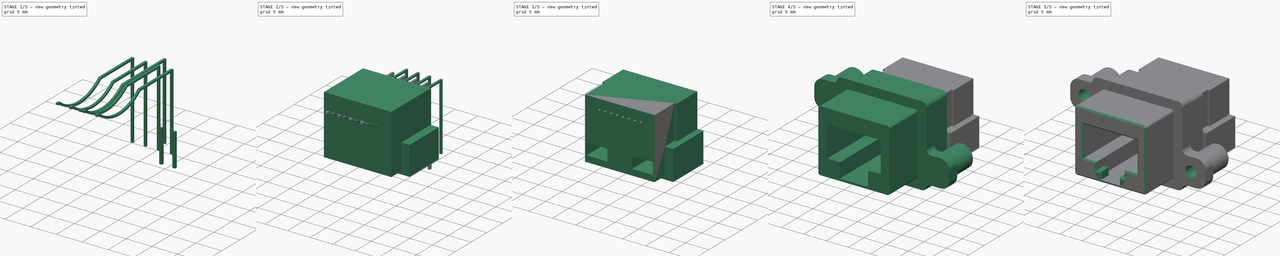
[diagram: build sequence overview — one tinted view per stage of 5, left to right]
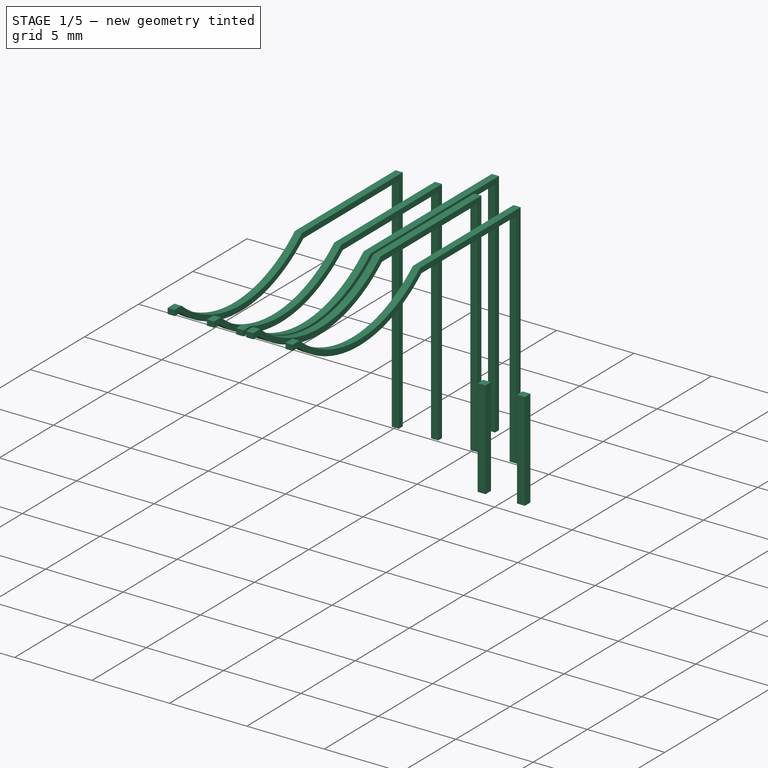
[diagram: stage 1 of 5 — iso view after this stage's code; geometry added in this stage tinted green]
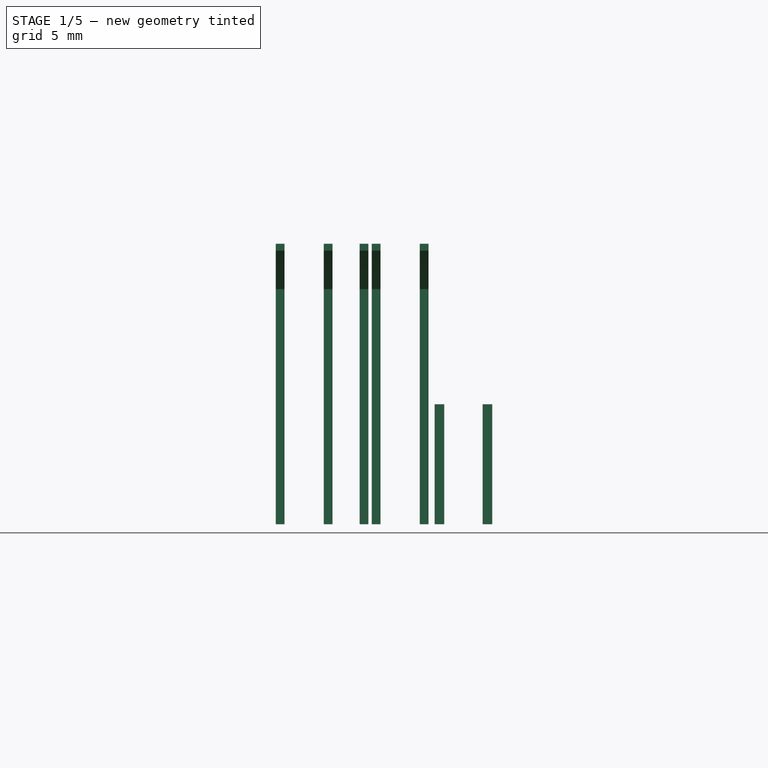
[diagram: stage 1 of 5 — front view after this stage's code; geometry added in this stage tinted green]
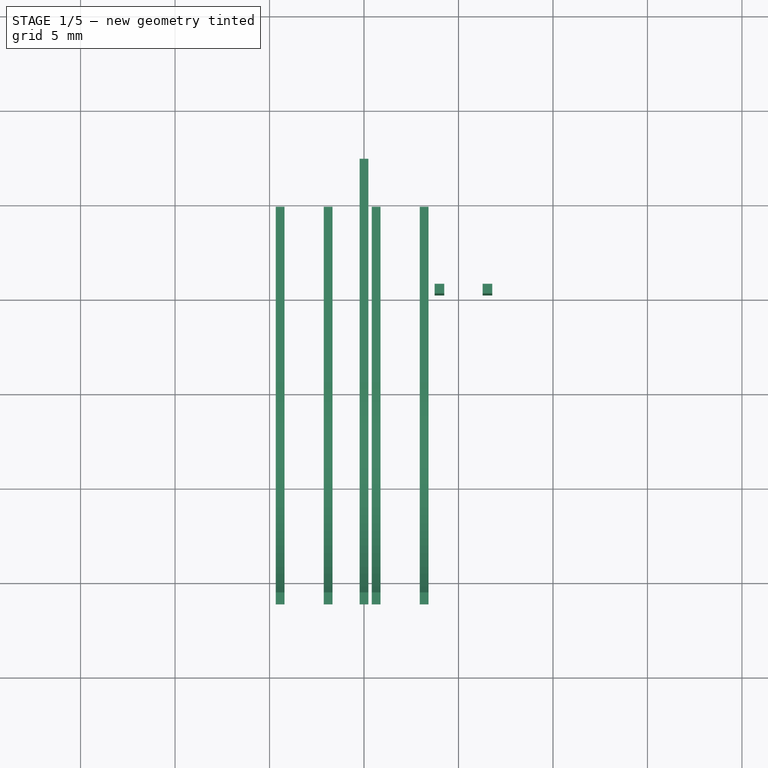
[diagram: stage 1 of 5 — top view after this stage's code; geometry added in this stage tinted green]
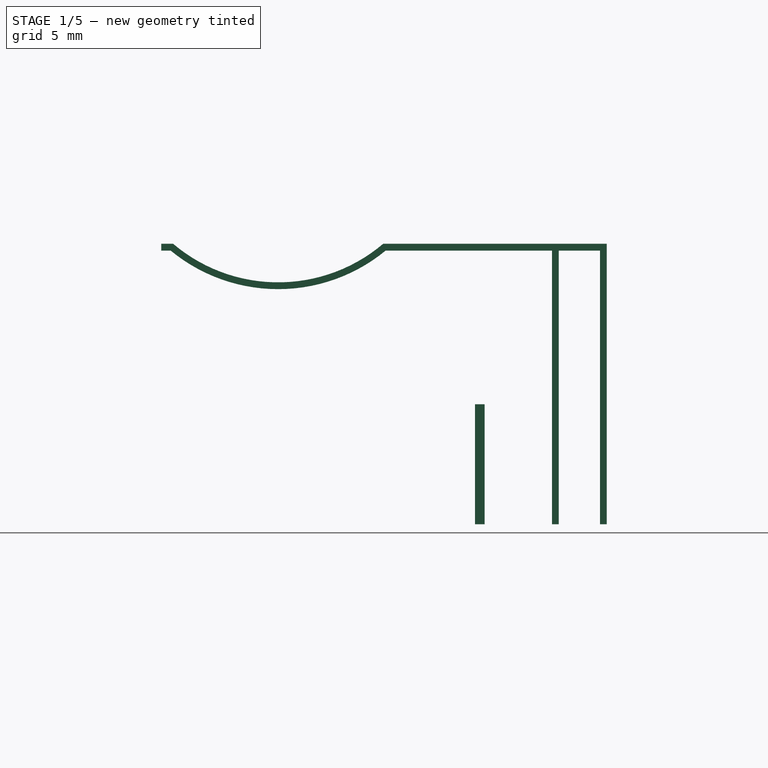
[diagram: stage 1 of 5 — right view after this stage's code; geometry added in this stage tinted green]
FCSTD DOCUMENT  (FreeCAD 1.0R38641 +468 (Git))
Label: MRJ-5381-M1-1
License: All rights reserved
objects: Sketcher::SketchObject×16, PartDesign::Pad×11, PartDesign::Body×6, PartDesign::Pocket×5, Part::FeaturePython×3, PartDesign::Mirrored×2, PartDesign::Fillet×2, Spreadsheet::Sheet×1, Part::Mirroring×1, Part::Compound×1, PartDesign::FeatureBase×1, Part::Cut×1, PartDesign::Line×1, PartDesign::Chamfer×1
note: 108 computed .brp shape members not serialized (recipe doc carries the construction recipe); baked Part::Feature solids carry a one-line shape summary decoded from their .brp

FEATURE [PartDesign::Body] Body001
  AllowCompound = false
  Group = -> [Sketch017,Pad005,Sketch018,Pad006,Sketch019,Pad007,Mirrored,Sketch020,Pocket003,Sketch021,Pocket004,Mirrored001]
  Origin = -> Origin001
  Placement = pos=(0,8.5,0) rot=(0,0,1;0rad)
  Tip = -> Mirrored001
  expr: .Placement.Base.y = <<Master>>.metal_back_tot
FEATURE [Sketcher::SketchObject] Sketch022
  ArcFitTolerance = 1e-06
  AttachmentSupport = -> [YZ_Plane002]
  FullyConstrained = true
  MakeInternals = false
  MapMode = 5
  Placement = pos=(0,0,0) rot=(0.57735,0.57735,0.57735;2.0944rad)
  expr: Constraints[35] = <<Master>>.metal_front - 2.54 mm
  expr: Constraints[43] = <<Master>>.pin_open_top
  sketch-geometry (16):
    g0: LineSegment StartX=17.22 StartY=-2.54 StartZ=0 EndX=17.22 EndY=12.3 EndZ=0
    g1: LineSegment StartX=17.22 StartY=12.3 StartZ=0 EndX=5.38539 EndY=12.3 EndZ=0
    g2: LineSegment StartX=-6.36 StartY=12.3 StartZ=0 EndX=-6.36 EndY=11.94 EndZ=0
    g3: LineSegment StartX=-6.36 StartY=11.94 StartZ=0 EndX=-5.86 EndY=11.94 EndZ=0
    g4: LineSegment StartX=16.86 StartY=11.94 StartZ=0 EndX=16.86 EndY=-2.54 EndZ=0
    g5: LineSegment StartX=16.86 StartY=-2.54 StartZ=0 EndX=17.22 EndY=-2.54 EndZ=0
    g6: ArcOfCircle CenterX=-0.172 CenterY=18.8497 CenterZ=0 NormalX=0 NormalY=0 NormalZ=1 AngleXU=0 Radius=8.94974 StartAngle=4.02367 EndAngle=5.40111
    g7: ArcOfCircle CenterX=-0.172 CenterY=18.8497 CenterZ=0 NormalX=0 NormalY=0 NormalZ=1 AngleXU=0 Radius=8.58974 StartAngle=4.00877 EndAngle=5.41601
    g8: LineSegment StartX=-5.72939 StartY=12.3 StartZ=0 EndX=-6.36 EndY=12.3 EndZ=0
    g9: LineSegment StartX=5.516 StartY=11.94 StartZ=0 EndX=16.86 EndY=11.94 EndZ=0
    g10: LineSegment [constr] StartX=-5.72939 StartY=12.3 StartZ=0 EndX=5.38539 EndY=12.3 EndZ=0
    g11: LineSegment [constr] StartX=5.516 StartY=11.94 StartZ=0 EndX=-5.86 EndY=11.94 EndZ=0
    g12: LineSegment [constr] StartX=-0.172 StartY=18.8497 StartZ=0 EndX=-0.172 EndY=10.26 EndZ=0
    g13: LineSegment [constr] StartX=-0.172 StartY=10.26 StartZ=0 EndX=-0.172 EndY=9.9 EndZ=0
    g14: LineSegment [constr] StartX=16.86 StartY=-2.54 StartZ=0 EndX=17.04 EndY=-2.85177 EndZ=0
    g15: LineSegment [constr] StartX=17.04 StartY=-2.85177 StartZ=0 EndX=17.22 EndY=-2.54 EndZ=0
  constraints (46):
    c: Vertical(g0)
    c: Coincident(g0,g1)
    c: Horizontal(g1)
    c: Coincident(g8,g2)
    c: Coincident(g2,g3)
    c: Horizontal(g3)
    c: Coincident(g9,g4)
    c: Vertical(g4)
    c: Coincident(g4,g5)
    c: Coincident(g5,g0)
    c: Horizontal(g5)
    c: Vertical(g2)
    c: Coincident(g1,g7)
    c: Coincident(g3,g6)
    c: Coincident(g9,g6)
    c: Horizontal(g9)
    c: Horizontal(g8)
    c: Coincident(g8,g7)
    c: Distance(g5,g5) = 0.36
    c: Equal(g5,g2)
    c: Coincident(g10,g7)
    c: Coincident(g10,g1)
    c: Horizontal(g10)
    c: Coincident(g11,g6)
    c: Coincident(g11,g3)
    c: Horizontal(g11)
    c: Coincident(g12,g6)
    c: PointOnObject(g12,g7)
    c: Vertical(g12)
    c: Coincident(g13,g12)
    c: PointOnObject(g13,g6)
    c: Vertical(g13)
    c: Equal(g13,g2)
    c: Coincident(g6,g7)
    c: DistanceY(g-1,g13) = 9.9
    c: DistanceX(g2,g-1) = 6.36
    c: Distance(g3,g3) = 0.5
    c: Coincident(g14,g4)
    c: Coincident(g15,g14)
    c: Coincident(g15,g0)
    c: Equal(g15,g14)
    c: Equal(g5,g15)
    c: DistanceX(g-1,g14) = 17.04
    c: DistanceY(g-1,g2) = 12.3
    c: DistanceX(g-1,g6) = 5.516
    c: DistanceY(g4,g-1) = 2.54
FEATURE [PartDesign::Pad] Pad008
  Direction = (1,0,0)
  Length = 0.46
  Length2 = 10
  Midplane = true
  Placement = pos=(0,0,0) rot=(1,1,1;2.0944rad)
  Profile = -> Sketch022
  ReferenceAxis = -> Sketch022 [N_Axis]
  Suppressed = false
  Type = 0
FEATURE [Sketcher::SketchObject] Sketch023
  ArcFitTolerance = 1e-06
  AttachmentSupport = -> [YZ_Plane003]
  FullyConstrained = true
  MakeInternals = false
  MapMode = 5
  Placement = pos=(0,0,0) rot=(0.57735,0.57735,0.57735;2.0944rad)
  expr: Constraints[35] = <<Master>>.metal_front - 2.54 mm
  expr: Constraints[43] = <<Master>>.pin_open_top
  sketch-geometry (16):
    g0: LineSegment StartX=14.68 StartY=-2.54 StartZ=0 EndX=14.68 EndY=12.3 EndZ=0
    g1: LineSegment StartX=14.68 StartY=12.3 StartZ=0 EndX=5.38539 EndY=12.3 EndZ=0
    g2: LineSegment StartX=-6.36 StartY=12.3 StartZ=0 EndX=-6.36 EndY=11.94 EndZ=0
    g3: LineSegment StartX=-6.36 StartY=11.94 StartZ=0 EndX=-5.86 EndY=11.94 EndZ=0
    g4: LineSegment StartX=14.32 StartY=11.94 StartZ=0 EndX=14.32 EndY=-2.54 EndZ=0
    g5: LineSegment StartX=14.32 StartY=-2.54 StartZ=0 EndX=14.68 EndY=-2.54 EndZ=0
    g6: ArcOfCircle CenterX=-0.172 CenterY=18.8497 CenterZ=0 NormalX=0 NormalY=0 NormalZ=1 AngleXU=0 Radius=8.94974 StartAngle=4.02367 EndAngle=5.40111
    g7: ArcOfCircle CenterX=-0.172 CenterY=18.8497 CenterZ=0 NormalX=0 NormalY=0 NormalZ=1 AngleXU=0 Radius=8.58974 StartAngle=4.00877 EndAngle=5.41601
    g8: LineSegment StartX=-5.72939 StartY=12.3 StartZ=0 EndX=-6.36 EndY=12.3 EndZ=0
    g9: LineSegment StartX=5.516 StartY=11.94 StartZ=0 EndX=14.32 EndY=11.94 EndZ=0
    g10: LineSegment [constr] StartX=-5.72939 StartY=12.3 StartZ=0 EndX=5.38539 EndY=12.3 EndZ=0
    g11: LineSegment [constr] StartX=5.516 StartY=11.94 StartZ=0 EndX=-5.86 EndY=11.94 EndZ=0
    g12: LineSegment [constr] StartX=-0.172 StartY=18.8497 StartZ=0 EndX=-0.172 EndY=10.26 EndZ=0
    g13: LineSegment [constr] StartX=-0.172 StartY=10.26 StartZ=0 EndX=-0.172 EndY=9.9 EndZ=0
    g14: LineSegment [constr] StartX=14.32 StartY=-2.54 StartZ=0 EndX=14.5 EndY=-2.85177 EndZ=0
    g15: LineSegment [constr] StartX=14.5 StartY=-2.85177 StartZ=0 EndX=14.68 EndY=-2.54 EndZ=0
  constraints (46):
    c: Vertical(g0)
    c: Coincident(g0,g1)
    c: Horizontal(g1)
    c: Coincident(g8,g2)
    c: Coincident(g2,g3)
    c: Horizontal(g3)
    c: Coincident(g9,g4)
    c: Vertical(g4)
    c: Coincident(g4,g5)
    c: Coincident(g5,g0)
    c: Horizontal(g5)
    c: Vertical(g2)
    c: Coincident(g1,g7)
    c: Coincident(g3,g6)
    c: Coincident(g9,g6)
    c: Horizontal(g9)
    c: Horizontal(g8)
    c: Coincident(g8,g7)
    c: Distance(g5,g5) = 0.36
    c: Equal(g5,g2)
    c: Coincident(g10,g7)
    c: Coincident(g10,g1)
    c: Horizontal(g10)
    c: Coincident(g11,g6)
    c: Coincident(g11,g3)
    c: Horizontal(g11)
    c: Coincident(g12,g6)
    c: PointOnObject(g12,g7)
    c: Vertical(g12)
    c: Coincident(g13,g12)
    c: PointOnObject(g13,g6)
    c: Vertical(g13)
    c: Equal(g13,g2)
    c: Coincident(g6,g7)
    c: DistanceY(g-1,g13) = 9.9
    c: DistanceX(g2,g-1) = 6.36
    c: Distance(g3,g3) = 0.5
    c: Coincident(g14,g4)
    c: Coincident(g15,g14)
    c: Coincident(g15,g0)
    c: Equal(g15,g14)
    c: Equal(g5,g15)
    c: DistanceX(g-1,g14) = 14.5
    c: DistanceY(g-1,g2) = 12.3
    c: DistanceX(g-1,g6) = 5.516
    c: DistanceY(g4,g-1) = 2.54
FEATURE [PartDesign::Pad] Pad009
  Direction = (1,0,0)
  Length = 0.46
  Length2 = 10
  Midplane = true
  Placement = pos=(0,0,0) rot=(1,1,1;2.0944rad)
  Profile = -> Sketch023
  ReferenceAxis = -> Sketch023 [N_Axis]
  Suppressed = false
  Type = 0
FEATURE [PartDesign::Body] Body003
  AllowCompound = false
  Group = -> [Pad009,Sketch023]
  Origin = -> Origin003
  Tip = -> Pad009
FEATURE [Part::FeaturePython] Array001  # Draft array (typed FeaturePython)
  Angle = 360
  ArrayType = 0
  Axis = (0,0,1)
  Base = -> Body003
  Center = (0,0,0)
  Count = 4
  Fuse = false
  IntervalAxis = (0,0,0)
  IntervalX = (2.54,0,0)
  IntervalY = (0,100,0)
  IntervalZ = (0,0,100)
  NumberCircles = 3
  NumberPolar = 5
  NumberX = 4
  NumberY = 1
  NumberZ = 1
  Placement = pos=(-4.44,0,0) rot=(0,0,1;0rad)
  RadialDistance = 50
  Symmetry = 1
  TangentialDistance = 25
FEATURE [Sketcher::SketchObject] Sketch024
  ArcFitTolerance = 1e-06
  AttachmentSupport = -> [XY_Plane004]
  FullyConstrained = true
  MakeInternals = false
  MapMode = 5
  sketch-geometry (8):
    g0: LineSegment StartX=-6.785 StartY=10.755 StartZ=0 EndX=-6.785 EndY=10.245 EndZ=0
    g1: LineSegment StartX=-6.785 StartY=10.245 StartZ=0 EndX=-6.275 EndY=10.245 EndZ=0
    g2: LineSegment StartX=-6.275 StartY=10.245 StartZ=0 EndX=-6.275 EndY=10.755 EndZ=0
    g3: LineSegment StartX=-6.275 StartY=10.755 StartZ=0 EndX=-6.785 EndY=10.755 EndZ=0
    g4: LineSegment [constr] StartX=-6.785 StartY=10.755 StartZ=0 EndX=-6.53 EndY=10.5 EndZ=0
    g5: LineSegment [constr] StartX=-6.53 StartY=10.5 StartZ=0 EndX=-6.275 EndY=10.245 EndZ=0
    g6: LineSegment [constr] StartX=-6.275 StartY=10.755 StartZ=0 EndX=-6.53 EndY=10.5 EndZ=0
    g7: LineSegment [constr] StartX=-6.53 StartY=10.5 StartZ=0 EndX=-6.785 EndY=10.245 EndZ=0
  constraints (21):
    c: Coincident(g0,g1)
    c: Coincident(g1,g2)
    c: Coincident(g2,g3)
    c: Coincident(g3,g0)
    c: Vertical(g0)
    c: Vertical(g2)
    c: Horizontal(g1)
    c: Horizontal(g3)
    c: Equal(g3,g2)
    c: Distance(g3,g3) = 0.51
    c: Coincident(g0,g4)
    c: Coincident(g4,g5)
    c: Coincident(g5,g1)
    c: Coincident(g2,g6)
    c: Coincident(g6,g4)
    c: Coincident(g6,g7)
    c: Coincident(g7,g0)
    c: Equal(g4,g5)
    c: Equal(g6,g7)
    c: DistanceY(g-1,g4) = 10.5
    c: DistanceX(g4,g-1) = 6.53
FEATURE [PartDesign::Pad] Pad010
  Direction = (0,0,1)
  Length = 3.81
  Length2 = 2.54
  Profile = -> Sketch024
  ReferenceAxis = -> Sketch024 [N_Axis]
  Suppressed = false
  Type = 4
FEATURE [PartDesign::Body] Body004
  AllowCompound = false
  Group = -> [Sketch024,Pad010]
  Origin = -> Origin004
  Tip = -> Pad010
FEATURE [Part::FeaturePython] Array002  # Draft array (typed FeaturePython)
  Angle = 360
  ArrayType = 0
  Axis = (0,0,1)
  Base = -> Body004
  Center = (0,0,0)
  Count = 2
  Fuse = false
  IntervalAxis = (0,0,0)
  IntervalX = (2.54,0,0)
  IntervalY = (0,100,0)
  IntervalZ = (0,0,100)
  NumberCircles = 3
  NumberPolar = 5
  NumberX = 2
  NumberY = 1
  NumberZ = 1
  RadialDistance = 50
  Symmetry = 1
  TangentialDistance = 25
FEATURE [Part::Mirroring] Part__Mirroring  label="Array002 (Mirror #1)"
  Base = (0,0,0)
  Normal = (1,0,0)
  Source = -> Array002
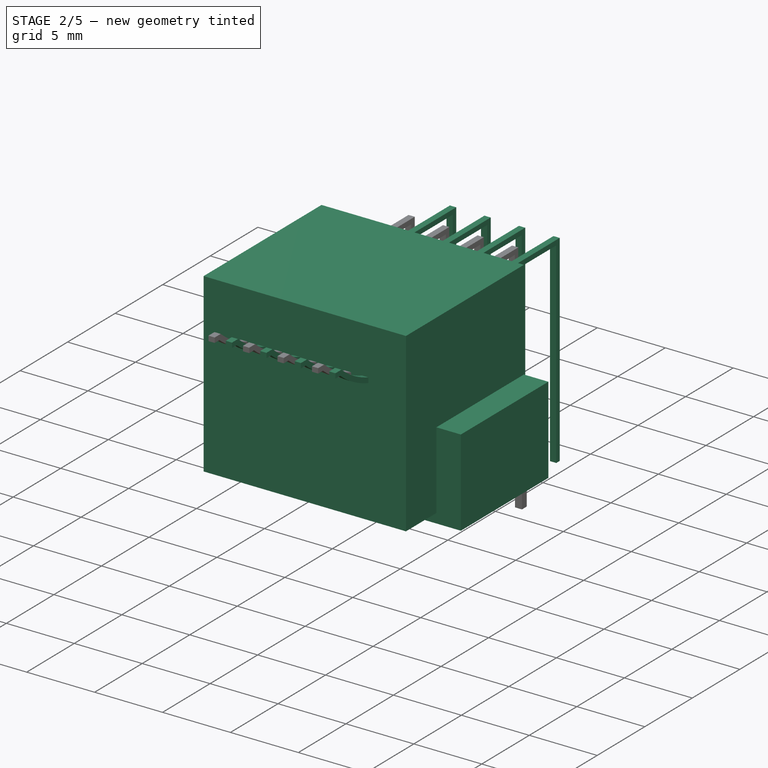
[diagram: stage 2 of 5 — iso view after this stage's code; geometry added in this stage tinted green]
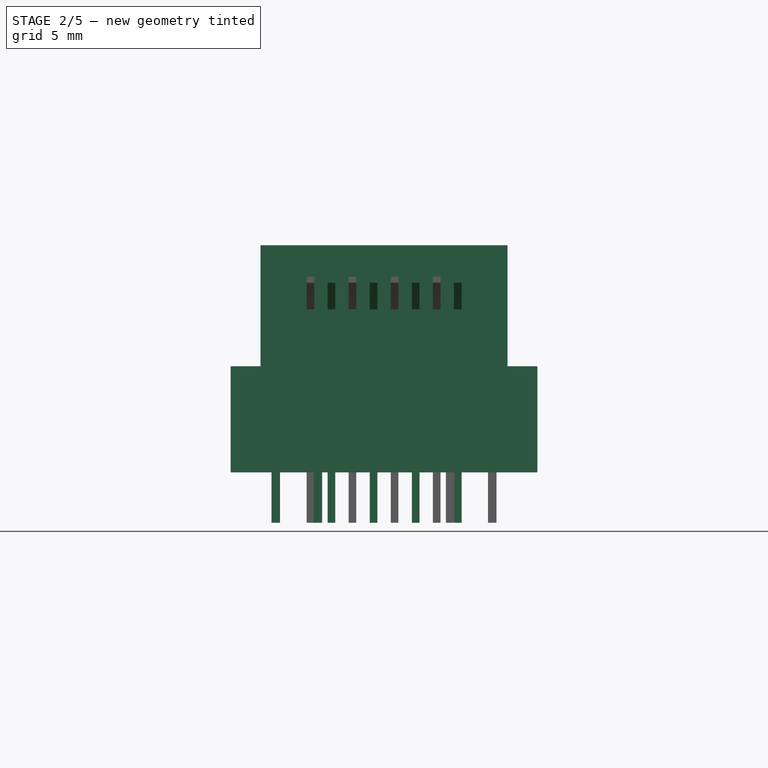
[diagram: stage 2 of 5 — front view after this stage's code; geometry added in this stage tinted green]
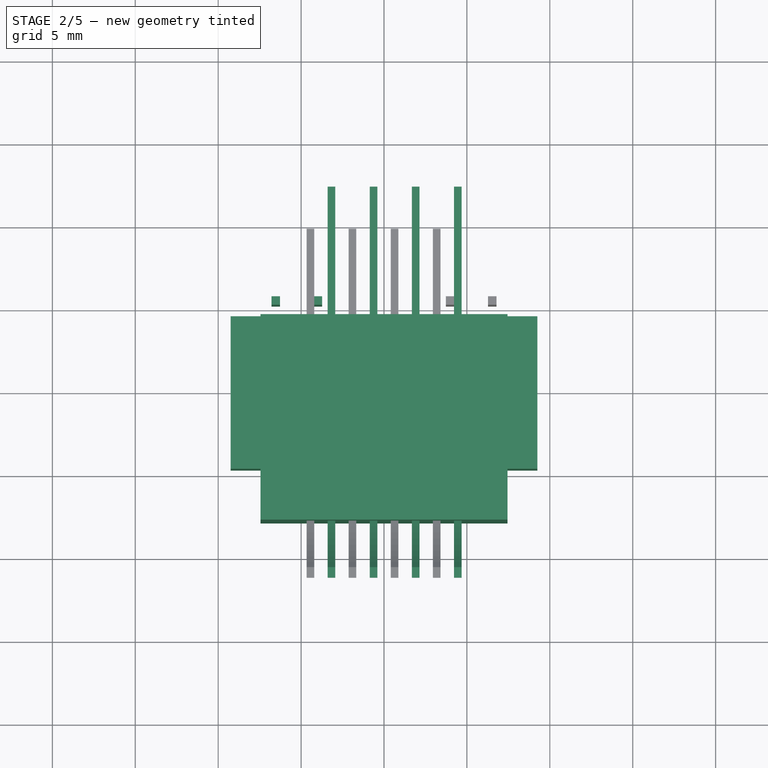
[diagram: stage 2 of 5 — top view after this stage's code; geometry added in this stage tinted green]
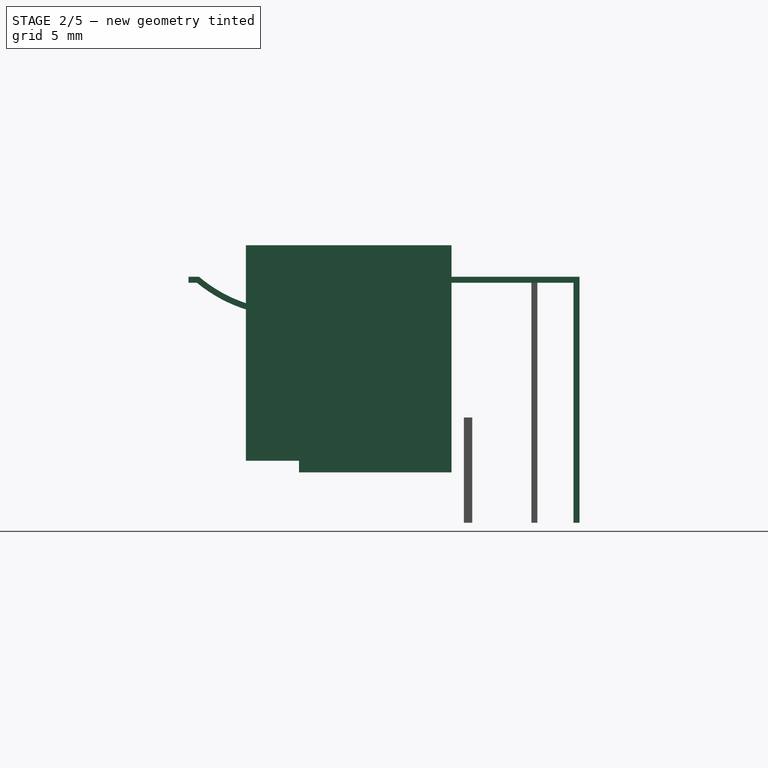
[diagram: stage 2 of 5 — right view after this stage's code; geometry added in this stage tinted green]
FEATURE [Spreadsheet::Sheet] Spreadsheet  label="Master"
  cells = A1='Constants; A2='metal back; B2(metal_back)==6 mm; D2='Length of back section; A3='metal middle; B3(metal_middle)==2.5 mm; D3='Length of middle section; A4='metal front; B4(metal_front)==8.9 mm; D4='Length of front section; A5='mnt spacing z/x; B5(mnt_z)==9 mm; C5(mnt_x)==24 mm; D5='Mounting hole vertical (z)/horizontal (x) spacing; A6='back open height/width; B6(back_open_z)==13 mm; C6(back_open_x)==14.9 mm; D6='Back opening height (z)/width (x); A7='back/metal overlap; B7(back_overlap)==2.9 mm; D7='Back to metal part overlap; A8='back length; B8(back_len)==12.4 mm; D8='Back plastic overall length; A10='Vertical offset constants; A11='center; B11(center)==7.7 mm; D11='Center line position offset; A12='front open; B12(v_front_open)==1.2 mm; D12='Origin to bottom of front opening; A14='Calculated; A15='metal back total; B15(metal_back_tot)==metal_middle + metal_back; D15='Length from origin to metal back; A16='back plane offset; B16(back_offset)==back_len - back_overlap; D16='Offset to back of plastic section; A17='pin open top; B17(pin_open_top)==back_thick + back_open_z - 1.9 mm; D17='Top of pin opening in back plastic; A18='back thick; B18(back_thick)==center - back_open_z / 2; D18='Origin to back opening bottom
FEATURE [Sketcher::SketchObject] Sketch003
  ArcFitTolerance = 0
  AttachmentSupport = -> [XY_Plane]
  FullyConstrained = true
  MakeInternals = false
  MapMode = 5
  sketch-geometry (17):
    g0: LineSegment StartX=-5 StartY=7.54 StartZ=0 EndX=-5.85 EndY=6.5 EndZ=0
    g1: LineSegment StartX=-5.85 StartY=6.5 StartZ=0 EndX=-5 EndY=5.46 EndZ=0
    g2: LineSegment StartX=-5 StartY=5.46 StartZ=0 EndX=-4.15 EndY=6.5 EndZ=0
    g3: LineSegment StartX=-4.15 StartY=6.5 StartZ=0 EndX=-5 EndY=7.54 EndZ=0
    g4: LineSegment StartX=5 StartY=5.65 StartZ=0 EndX=3.96 EndY=6.5 EndZ=0
    g5: LineSegment StartX=3.96 StartY=6.5 StartZ=0 EndX=5 EndY=7.35 EndZ=0
    g6: LineSegment StartX=5 StartY=7.35 StartZ=0 EndX=6.04 EndY=6.5 EndZ=0
    g7: LineSegment StartX=6.04 StartY=6.5 StartZ=0 EndX=5 EndY=5.65 EndZ=0
    g8: LineSegment [constr] StartX=-5 StartY=7.54 StartZ=0 EndX=-5 EndY=6.5 EndZ=0
    g9: LineSegment [constr] StartX=-5 StartY=6.5 StartZ=0 EndX=-5 EndY=5.46 EndZ=0
    g10: LineSegment [constr] StartX=-5 StartY=6.5 StartZ=0 EndX=-5.85 EndY=6.5 EndZ=0
    g11: LineSegment [constr] StartX=-5 StartY=6.5 StartZ=0 EndX=-4.15 EndY=6.5 EndZ=0
    g12: LineSegment [constr] StartX=5 StartY=5.65 StartZ=0 EndX=5 EndY=6.5 EndZ=0
    g13: LineSegment [constr] StartX=5 StartY=6.5 StartZ=0 EndX=5 EndY=7.35 EndZ=0
    g14: LineSegment [constr] StartX=6.04 StartY=6.5 StartZ=0 EndX=5 EndY=6.5 EndZ=0
    g15: LineSegment [constr] StartX=5 StartY=6.5 StartZ=0 EndX=3.96 EndY=6.5 EndZ=0
    g16: LineSegment [constr] StartX=-4.15 StartY=6.5 StartZ=0 EndX=3.96 EndY=6.5 EndZ=0
  constraints (43):
    c: Coincident(g0,g1)
    c: Coincident(g1,g2)
    c: Coincident(g2,g3)
    c: Coincident(g3,g0)
    c: Coincident(g4,g5)
    c: Coincident(g5,g6)
    c: Coincident(g6,g7)
    c: Coincident(g7,g4)
    c: Coincident(g8,g0)
    c: Coincident(g9,g8)
    c: Coincident(g9,g1)
    c: Horizontal(g11)
    c: Coincident(g11,g2)
    c: Coincident(g11,g10)
    c: Coincident(g11,g8)
    c: Coincident(g10,g0)
    c: Horizontal(g10)
    c: Vertical(g8)
    c: Vertical(g9)
    c: Coincident(g4,g12)
    c: Coincident(g12,g13)
    c: Coincident(g13,g5)
    c: Vertical(g13)
    c: Coincident(g14,g12)
    c: Coincident(g15,g4)
    c: Horizontal(g14)
    c: Horizontal(g15)
    c: Vertical(g12)
    c: Coincident(g15,g12)
    c: Coincident(g16,g2)
    c: Coincident(g16,g4)
    c: Equal(g10,g11)
    c: Equal(g8,g9)
    c: Equal(g15,g14)
    c: Equal(g12,g13)
    c: Equal(g15,g8)
    c: Equal(g13,g11)
    c: Symmetric(g8,g12,g-2)
    c: DistanceX(g0,g2) = 1.7
    c: DistanceY(g1,g0) = 2.08
    c: DistanceY(g-1,g0) = 6.5
    c: DistanceX(g0,g5) = 10
    c: Coincident(g14,g6)
FEATURE [Sketcher::SketchObject] Sketch013
  ArcFitTolerance = 0
  AttachmentSupport = -> [XZ_Plane]
  FullyConstrained = true
  MakeInternals = false
  MapMode = 5
  Placement = pos=(0,0,0) rot=(1,0,0;1.5708rad)
  expr: Constraints[24] = <<Master>>.v_front_open
  sketch-geometry (9):
    g0: LineSegment StartX=-6 StartY=11.4 StartZ=0 EndX=6 EndY=11.4 EndZ=0
    g1: LineSegment StartX=6 StartY=11.4 StartZ=0 EndX=6 EndY=4.5 EndZ=0
    g2: LineSegment StartX=6 StartY=4.5 StartZ=0 EndX=3.15 EndY=4.5 EndZ=0
    g3: LineSegment StartX=3.15 StartY=4.5 StartZ=0 EndX=3.15 EndY=1.2 EndZ=0
    g4: LineSegment StartX=3.15 StartY=1.2 StartZ=0 EndX=-3.15 EndY=1.2 EndZ=0
    g5: LineSegment StartX=-3.15 StartY=1.2 StartZ=0 EndX=-3.15 EndY=4.5 EndZ=0
    g6: LineSegment StartX=-3.15 StartY=4.5 StartZ=0 EndX=-6 EndY=4.5 EndZ=0
    g7: LineSegment StartX=-6 StartY=4.5 StartZ=0 EndX=-6 EndY=11.4 EndZ=0
    g8: LineSegment [constr] StartX=-3.15 StartY=4.5 StartZ=0 EndX=3.15 EndY=4.5 EndZ=0
  constraints (25):
    c: Coincident(g0,g1)
    c: Vertical(g1)
    c: Coincident(g1,g2)
    c: Horizontal(g2)
    c: Coincident(g2,g3)
    c: Vertical(g3)
    c: Coincident(g3,g4)
    c: Horizontal(g4)
    c: Coincident(g4,g5)
    c: Coincident(g5,g6)
    c: Horizontal(g6)
    c: Coincident(g6,g7)
    c: Coincident(g7,g0)
    c: Vertical(g7)
    c: Vertical(g5)
    c: DistanceX(g0) = 12
    c: DistanceY(g7) = 6.9
    c: Coincident(g8,g5)
    c: Coincident(g8,g2)
    c: Horizontal(g8)
    c: Equal(g6,g2)
    c: DistanceY(g4,g6) = 3.3
    c: Symmetric(g0,g0,g-2)
    c: DistanceX(g4,g4) = 6.3
    c: DistanceY(g-1,g4) = 1.2
FEATURE [Sketcher::SketchObject] Sketch014
  ArcFitTolerance = 0
  AttachmentOffset = pos=(0,0,8.9) rot=(0,0,1;0rad)
  AttachmentSupport = -> [XZ_Plane]
  FullyConstrained = true
  MakeInternals = false
  MapMode = 5
  Placement = pos=(0,-8.9,2e-15) rot=(1,0,0;1.5708rad)
  expr: .AttachmentOffset.Base.z = <<Master>>.metal_front
  expr: Constraints[24] = <<Master>>.v_front_open
  sketch-geometry (9):
    g0: LineSegment StartX=-3.15 StartY=2.8 StartZ=0 EndX=-2.05 EndY=2.8 EndZ=0
    g1: LineSegment StartX=-2.05 StartY=2.8 StartZ=0 EndX=-2.05 EndY=1.2 EndZ=0
    g2: LineSegment StartX=-2.05 StartY=1.2 StartZ=0 EndX=-3.15 EndY=1.2 EndZ=0
    g3: LineSegment StartX=-3.15 StartY=1.2 StartZ=0 EndX=-3.15 EndY=2.8 EndZ=0
    g4: LineSegment StartX=2.05 StartY=2.8 StartZ=0 EndX=3.15 EndY=2.8 EndZ=0
    g5: LineSegment StartX=3.15 StartY=2.8 StartZ=0 EndX=3.15 EndY=1.2 EndZ=0
    g6: LineSegment StartX=3.15 StartY=1.2 StartZ=0 EndX=2.05 EndY=1.2 EndZ=0
    g7: LineSegment StartX=2.05 StartY=1.2 StartZ=0 EndX=2.05 EndY=2.8 EndZ=0
    g8: LineSegment [constr] StartX=-2.05 StartY=1.2 StartZ=0 EndX=2.05 EndY=1.2 EndZ=0
  constraints (25):
    c: Coincident(g0,g1)
    c: Coincident(g1,g2)
    c: Coincident(g2,g3)
    c: Coincident(g3,g0)
    c: Horizontal(g0)
    c: Horizontal(g2)
    c: Vertical(g1)
    c: Vertical(g3)
    c: Coincident(g4,g5)
    c: Coincident(g5,g6)
    c: Coincident(g6,g7)
    c: Coincident(g7,g4)
    c: Horizontal(g4)
    c: Horizontal(g6)
    c: Vertical(g5)
    c: Vertical(g7)
    c: Equal(g0,g4)
    c: Equal(g3,g7)
    c: DistanceY(g3) = 1.6
    c: DistanceX(g1,g6) = 4.1
    c: Coincident(g8,g1)
    c: Coincident(g8,g6)
    c: DistanceX(g2,g5) = 6.3
    c: Symmetric(g1,g6,g-2)
    c: DistanceY(g-1,g2) = 1.2
FEATURE [Sketcher::SketchObject] Sketch017
  ArcFitTolerance = 1e-06
  AttachmentSupport = -> [XZ_Plane001]
  FullyConstrained = true
  MakeInternals = false
  MapMode = 5
  Placement = pos=(0,0,0) rot=(1,0,0;1.5708rad)
  expr: Constraints[10] = <<Master>>.back_thick
  expr: Constraints[7] = <<Master>>.back_open_x
  expr: Constraints[8] = <<Master>>.back_open_z
  sketch-geometry (4):
    g0: LineSegment StartX=-7.45 StartY=14.2 StartZ=0 EndX=-7.45 EndY=1.2 EndZ=0
    g1: LineSegment StartX=-7.45 StartY=1.2 StartZ=0 EndX=7.45 EndY=1.2 EndZ=0
    g2: LineSegment StartX=7.45 StartY=1.2 StartZ=0 EndX=7.45 EndY=14.2 EndZ=0
    g3: LineSegment StartX=7.45 StartY=14.2 StartZ=0 EndX=-7.45 EndY=14.2 EndZ=0
  constraints (11):
    c: Coincident(g0,g1)
    c: Coincident(g1,g2)
    c: Coincident(g2,g3)
    c: Coincident(g3,g0)
    c: Vertical(g0)
    c: Vertical(g2)
    c: Horizontal(g1)
    c: DistanceX(g3,g3) = 14.9
    c: DistanceY(g0,g0) = 13
    c: Symmetric(g0,g2,g-2)
    c: DistanceY(g-1,g0) = 1.2
FEATURE [PartDesign::Pad] Pad005
  Direction = (0,-1,2e-16)
  Length = 2.9
  Length2 = 9.5
  Placement = pos=(0,0,0) rot=(1,0,0;1.5708rad)
  Profile = -> Sketch017
  ReferenceAxis = -> Sketch017 [N_Axis]
  Suppressed = false
  Type = 4
  expr: Length = <<Master>>.back_overlap
  expr: Length2 = <<Master>>.back_offset
FEATURE [Sketcher::SketchObject] Sketch018
  ArcFitTolerance = 0
  AttachmentOffset = pos=(0,0,-9.5) rot=(0,0,1;0rad)
  AttachmentSupport = -> [XZ_Plane001]
  FullyConstrained = true
  MakeInternals = false
  MapMode = 5
  Placement = pos=(0,9.5,-2.1e-15) rot=(1,0,0;1.5708rad)
  expr: .AttachmentOffset.Base.z = -<<Master>>.back_offset
  expr: Constraints[17] = <<Master>>.back_open_x
  expr: Constraints[22] = <<Master>>.back_thick
  sketch-geometry (8):
    g0: LineSegment StartX=-9.25 StartY=6.9 StartZ=0 EndX=-7.45 EndY=6.9 EndZ=0
    g1: LineSegment StartX=-7.45 StartY=6.9 StartZ=0 EndX=-7.45 EndY=1.2 EndZ=0
    g2: LineSegment StartX=-7.45 StartY=1.2 StartZ=0 EndX=7.45 EndY=1.2 EndZ=0
    g3: LineSegment StartX=7.45 StartY=1.2 StartZ=0 EndX=7.45 EndY=6.9 EndZ=0
    g4: LineSegment StartX=7.45 StartY=6.9 StartZ=0 EndX=9.25 EndY=6.9 EndZ=0
    g5: LineSegment StartX=9.25 StartY=6.9 StartZ=0 EndX=9.25 EndY=0.5 EndZ=0
    g6: LineSegment StartX=9.25 StartY=0.5 StartZ=0 EndX=-9.25 EndY=0.5 EndZ=0
    g7: LineSegment StartX=-9.25 StartY=0.5 StartZ=0 EndX=-9.25 EndY=6.9 EndZ=0
  constraints (23):
    c: Coincident(g0,g1)
    c: Coincident(g1,g2)
    c: Horizontal(g2)
    c: Coincident(g2,g3)
    c: Vertical(g3)
    c: Coincident(g3,g4)
    c: Horizontal(g4)
    c: Coincident(g4,g5)
    c: Coincident(g5,g6)
    c: Coincident(g6,g7)
    c: Coincident(g7,g0)
    c: Vertical(g1)
    c: Vertical(g7)
    c: Horizontal(g0)
    c: Vertical(g5)
    c: Equal(g3,g1)
    c: DistanceY(g-1,g6) = 0.5
    c: DistanceX(g0,g3) = 14.9
    c: DistanceY(g7,g7) = 6.4
    c: DistanceX(g6,g6) = 18.5
    c: Equal(g4,g0)
    c: Symmetric(g6,g5,g-2)
    c: DistanceY(g-1,g1) = 1.2
FEATURE [PartDesign::Pad] Pad006
  BaseFeature = -> Pad005
  Direction = (0,-1,2e-16)
  Length = 9.2
  Length2 = 10
  Placement = pos=(0,0,0) rot=(1,0,0;1.5708rad)
  Profile = -> Sketch018
  ReferenceAxis = -> Sketch018 [N_Axis]
  Suppressed = false
  Type = 0
FEATURE [PartDesign::Body] Body002
  AllowCompound = false
  Group = -> [Sketch022,Pad008]
  Origin = -> Origin002
  Tip = -> Pad008
FEATURE [Part::FeaturePython] Array  # Draft array (typed FeaturePython)
  Angle = 360
  ArrayType = 0
  Axis = (0,0,1)
  Base = -> Body002
  Center = (0,0,0)
  Count = 4
  Fuse = false
  IntervalAxis = (0,0,0)
  IntervalX = (2.54,0,0)
  IntervalY = (0,100,0)
  IntervalZ = (0,0,100)
  NumberCircles = 3
  NumberPolar = 5
  NumberX = 4
  NumberY = 1
  NumberZ = 1
  Placement = pos=(-3.17,0,0) rot=(0,0,1;0rad)
  RadialDistance = 50
  Symmetry = 1
  TangentialDistance = 25
FEATURE [Part::Compound] Compound  label="Pins"
  Links = -> [Part__Mirroring,Array002,Array001,Array]
FEATURE [PartDesign::FeatureBase] Clone
  BaseFeature = -> Compound
  Suppressed = false
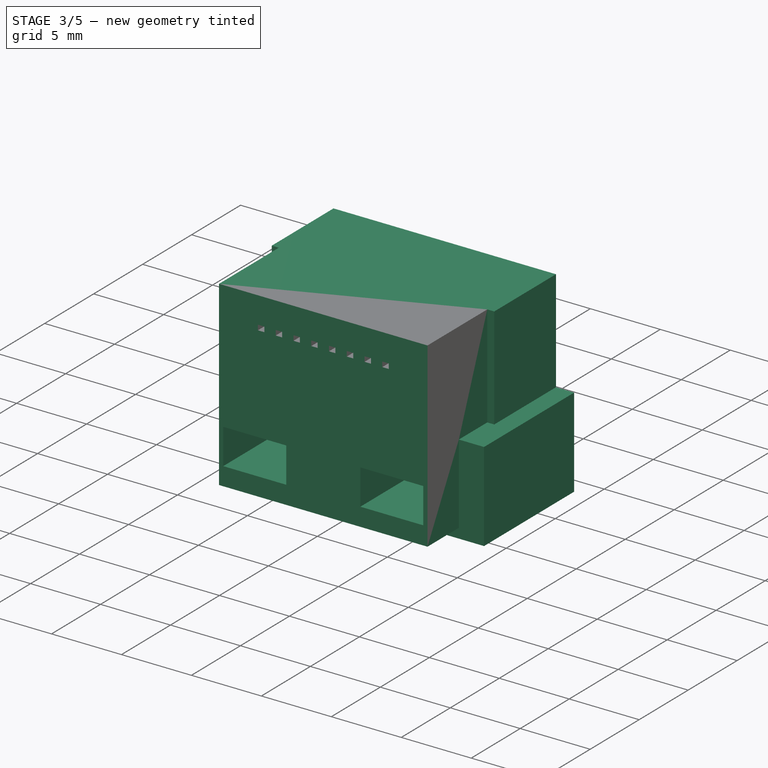
[diagram: stage 3 of 5 — iso view after this stage's code; geometry added in this stage tinted green]
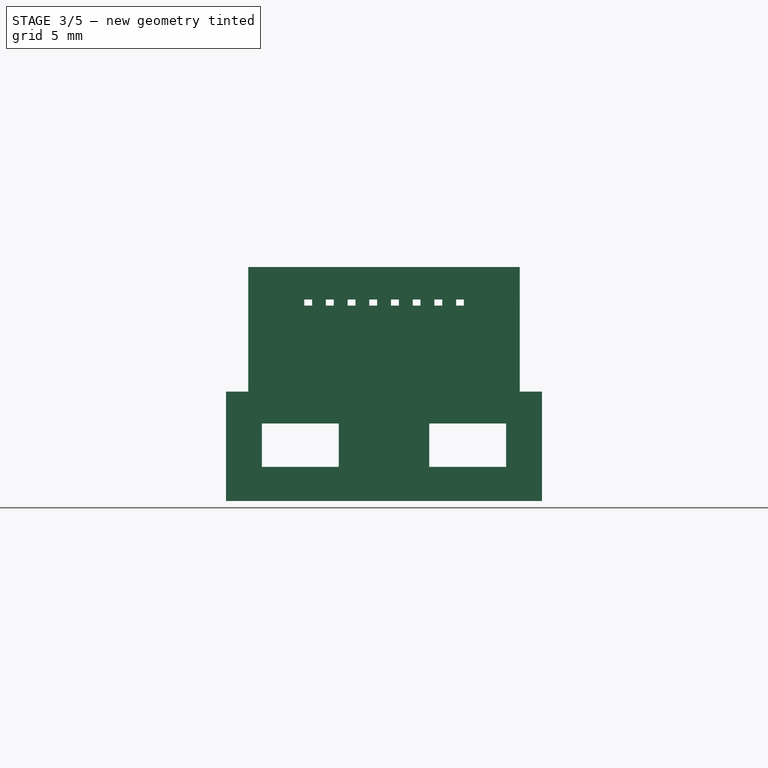
[diagram: stage 3 of 5 — front view after this stage's code; geometry added in this stage tinted green]
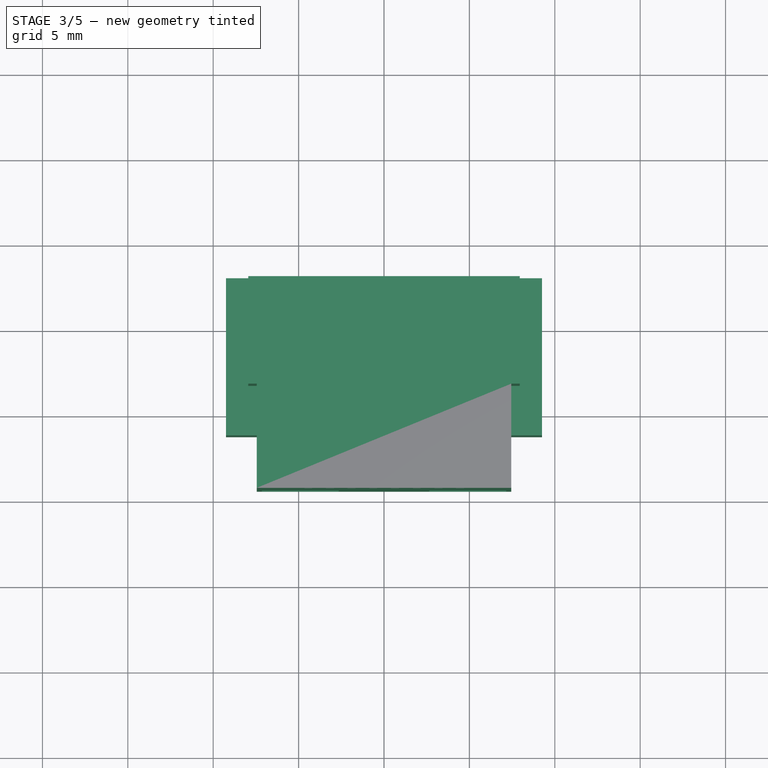
[diagram: stage 3 of 5 — top view after this stage's code; geometry added in this stage tinted green]
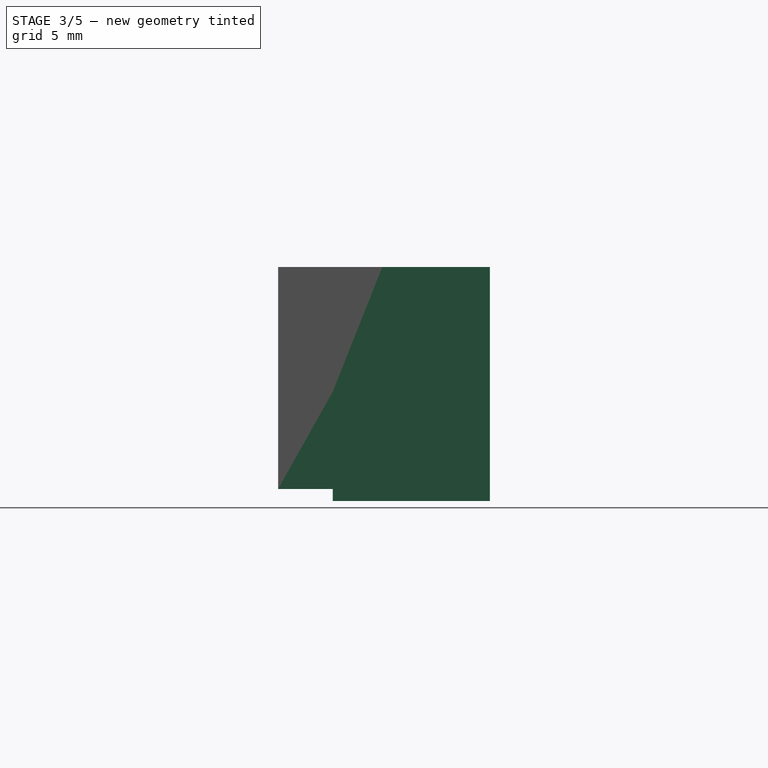
[diagram: stage 3 of 5 — right view after this stage's code; geometry added in this stage tinted green]
FEATURE [Sketcher::SketchObject] Sketch019
  ArcFitTolerance = 0
  AttachmentOffset = pos=(0,0,-9.5) rot=(0,0,1;0rad)
  AttachmentSupport = -> [XZ_Plane001]
  FullyConstrained = true
  MakeInternals = false
  MapMode = 5
  Placement = pos=(0,9.5,-2.1e-15) rot=(1,0,0;1.5708rad)
  expr: .AttachmentOffset.Base.z = -<<Master>>.back_offset
  expr: Constraints[10] = <<Master>>.back_thick
  expr: Constraints[11] = <<Master>>.back_open_z
  expr: Constraints[12] = <<Master>>.back_open_x / 2
  sketch-geometry (5):
    g0: LineSegment StartX=7.45 StartY=14.2 StartZ=0 EndX=7.45 EndY=1.2 EndZ=0
    g1: LineSegment StartX=7.45 StartY=1.2 StartZ=0 EndX=7.95 EndY=1.2 EndZ=0
    g2: LineSegment StartX=7.95 StartY=1.2 StartZ=0 EndX=7.95 EndY=14.2 EndZ=0
    g3: LineSegment StartX=7.95 StartY=14.2 StartZ=0 EndX=7.45 EndY=14.2 EndZ=0
    g4: LineSegment [constr] StartX=7.45 StartY=1.2 StartZ=0 EndX=7.45 EndY=0 EndZ=0
  constraints (15):
    c: Coincident(g0,g1)
    c: Coincident(g1,g2)
    c: Coincident(g2,g3)
    c: Coincident(g3,g0)
    c: Vertical(g0)
    c: Vertical(g2)
    c: Horizontal(g1)
    c: Horizontal(g3)
    c: PointOnObject(g4,g-1)
    c: Vertical(g4)
    c: Distance(g4,g4) = 1.2
    c: DistanceY(g4,g2) = 13
    c: DistanceX(g-1,g4) = 7.45
    c: Coincident(g0,g4)
    c: Distance(g3,g3) = 0.5
FEATURE [PartDesign::Pad] Pad007
  BaseFeature = -> Pad006
  Direction = (0,-1,2e-16)
  Length = 6.3
  Length2 = 10
  Placement = pos=(0,0,0) rot=(1,0,0;1.5708rad)
  Profile = -> Sketch019
  ReferenceAxis = -> Sketch019 [N_Axis]
  Suppressed = false
  Type = 0
FEATURE [PartDesign::Mirrored] Mirrored
  BaseFeature = -> Pad007
  MirrorPlane = -> Sketch019 [V_Axis]
  Originals = -> [Pad007]
  Placement = pos=(0,0,0) rot=(1,0,0;1.5708rad)
  Suppressed = false
  TransformMode = 0
FEATURE [Sketcher::SketchObject] Sketch020
  ArcFitTolerance = 0
  AttachmentOffset = pos=(0,0,-9.5) rot=(0,0,1;0rad)
  AttachmentSupport = -> [XZ_Plane001]
  FullyConstrained = true
  MakeInternals = false
  MapMode = 5
  Placement = pos=(0,9.5,-2.1e-15) rot=(1,0,0;1.5708rad)
  expr: .AttachmentOffset.Base.z = -<<Master>>.back_offset
  expr: Constraints[10] = <<Master>>.pin_open_top
  sketch-geometry (4):
    g0: LineSegment StartX=-7.15 StartY=12.3 StartZ=0 EndX=7.15 EndY=12.3 EndZ=0
    g1: LineSegment StartX=7.15 StartY=12.3 StartZ=0 EndX=7.15 EndY=2.5 EndZ=0
    g2: LineSegment StartX=7.15 StartY=2.5 StartZ=0 EndX=-7.15 EndY=2.5 EndZ=0
    g3: LineSegment StartX=-7.15 StartY=2.5 StartZ=0 EndX=-7.15 EndY=12.3 EndZ=0
  constraints (11):
    c: Coincident(g0,g1)
    c: Coincident(g1,g2)
    c: Coincident(g2,g3)
    c: Coincident(g3,g0)
    c: Horizontal(g0)
    c: Vertical(g1)
    c: Vertical(g3)
    c: DistanceY(g3) = 9.8
    c: Symmetric(g2,g1,g-2)
    c: DistanceX(g2,g2) = 14.3
    c: DistanceY(g-1,g0) = 12.3
FEATURE [PartDesign::Pocket] Pocket003
  BaseFeature = -> Mirrored
  Direction = (0,1,-2e-16)
  Length = 5
  Length2 = 5
  Placement = pos=(0,0,0) rot=(1,0,0;1.5708rad)
  Profile = -> Sketch020
  ReferenceAxis = -> Sketch020 [N_Axis]
  Reversed = true
  Suppressed = false
  Type = 0
FEATURE [Sketcher::SketchObject] Sketch021
  ArcFitTolerance = 0
  AttachmentSupport = -> [XZ_Plane001]
  ExternalGeometry = -> [Sketch020]
  FullyConstrained = true
  MakeInternals = false
  MapMode = 5
  Placement = pos=(0,0,0) rot=(1,0,0;1.5708rad)
  sketch-geometry (4):
    g0: LineSegment StartX=-7.15 StartY=5.04 StartZ=0 EndX=-2.65 EndY=5.04 EndZ=0
    g1: LineSegment StartX=-2.65 StartY=5.04 StartZ=0 EndX=-2.65 EndY=2.5 EndZ=0
    g2: LineSegment StartX=-2.65 StartY=2.5 StartZ=0 EndX=-7.15 EndY=2.5 EndZ=0
    g3: LineSegment StartX=-7.15 StartY=2.5 StartZ=0 EndX=-7.15 EndY=5.04 EndZ=0
  constraints (11):
    c: Coincident(g0,g1)
    c: Coincident(g1,g2)
    c: Coincident(g2,g3)
    c: Coincident(g3,g0)
    c: Horizontal(g0)
    c: Horizontal(g2)
    c: Vertical(g1)
    c: Vertical(g3)
    c: Coincident(g2,g-3)
    c: DistanceX(g2,g2) = 4.5
    c: Distance(g3,g3) = 2.54
FEATURE [PartDesign::Pocket] Pocket004
  BaseFeature = -> Pocket003
  Direction = (0,1,-2e-16)
  Length = 5
  Length2 = 5
  Midplane = true
  Placement = pos=(0,0,0) rot=(1,0,0;1.5708rad)
  Profile = -> Sketch021
  ReferenceAxis = -> Sketch021 [N_Axis]
  Suppressed = false
  Type = 1
FEATURE [PartDesign::Mirrored] Mirrored001
  BaseFeature = -> Pocket004
  MirrorPlane = -> Sketch021 [V_Axis]
  Originals = -> [Pocket004]
  Placement = pos=(0,0,0) rot=(1,0,0;1.5708rad)
  Refine = true
  Suppressed = false
  TransformMode = 0
FEATURE [PartDesign::Body] Body005
  AllowCompound = false
  Group = -> [Clone]
  Origin = -> Origin005
  Tip = -> Clone
FEATURE [Part::Cut] Cut
  Base = -> Body001
  Refine = true
  Tool = -> Body005
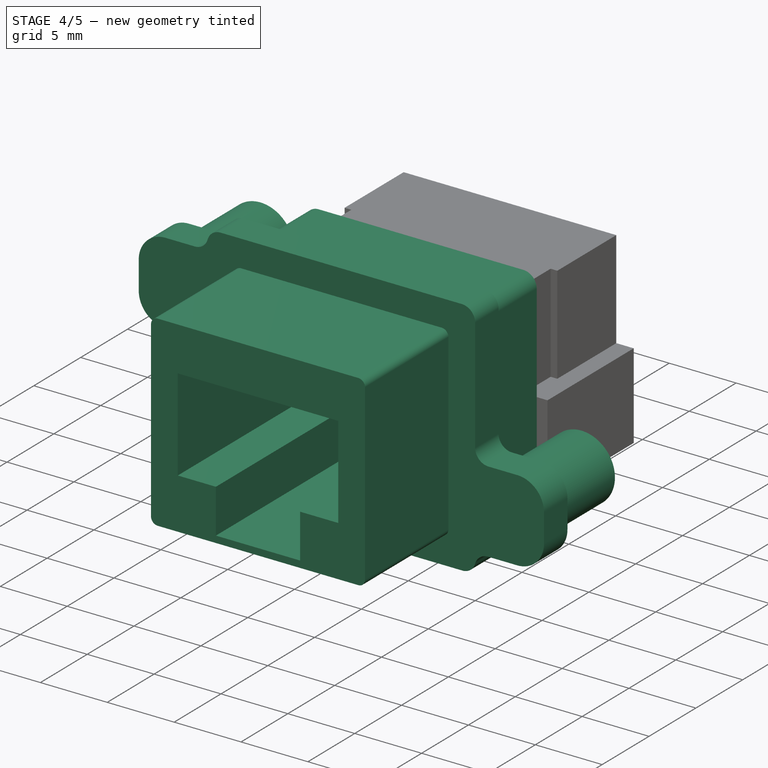
[diagram: stage 4 of 5 — iso view after this stage's code; geometry added in this stage tinted green]
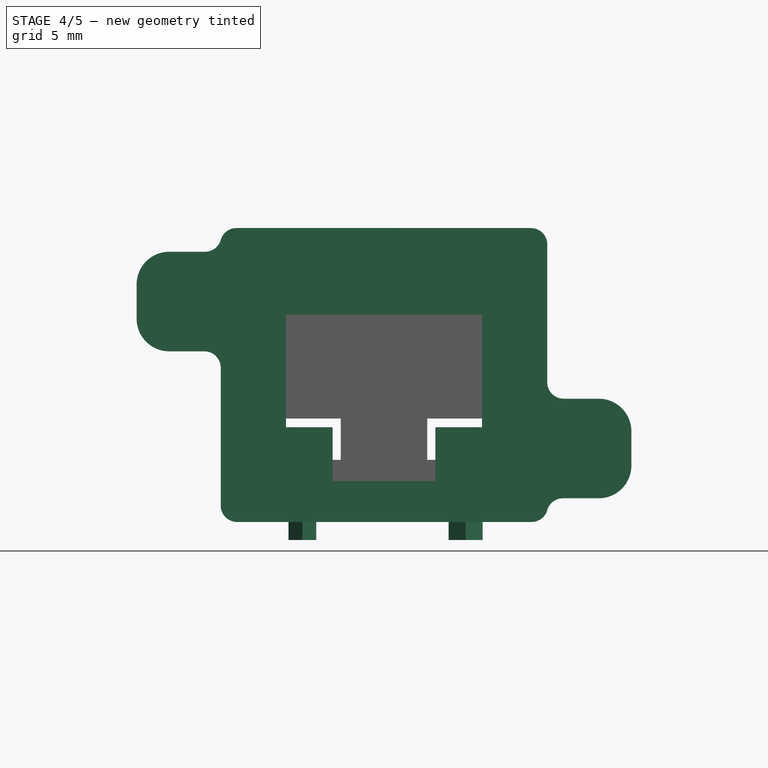
[diagram: stage 4 of 5 — front view after this stage's code; geometry added in this stage tinted green]
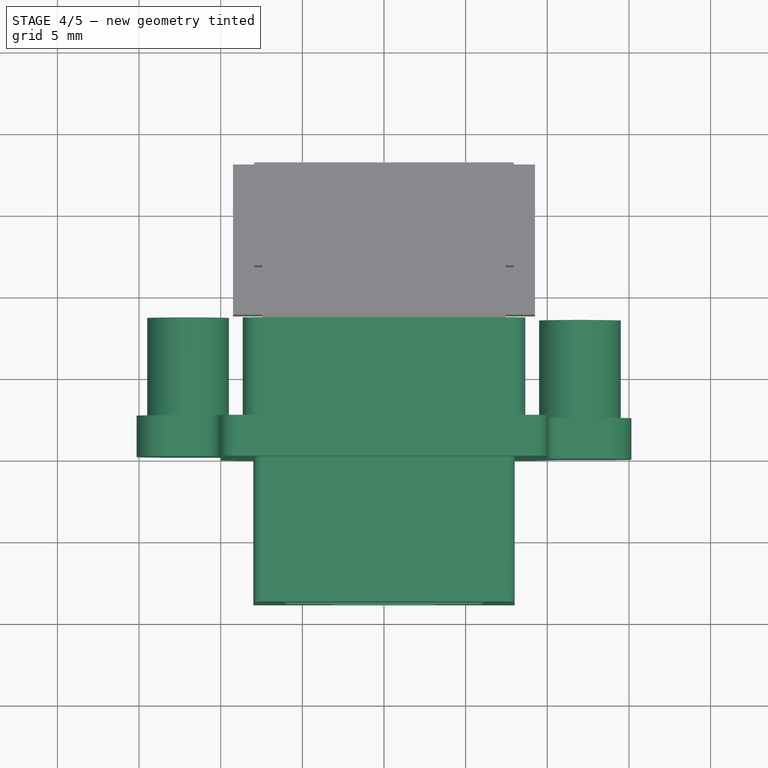
[diagram: stage 4 of 5 — top view after this stage's code; geometry added in this stage tinted green]
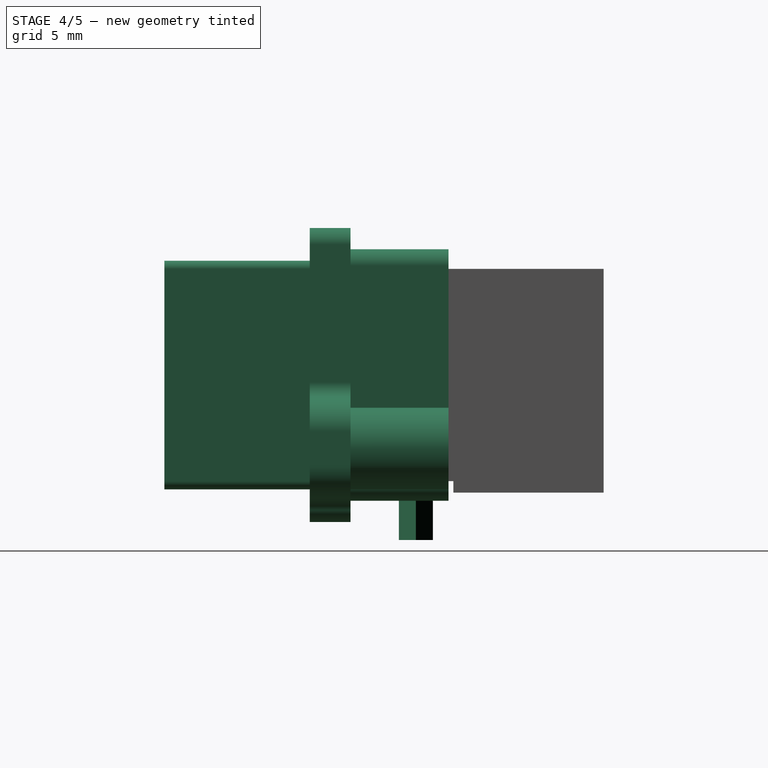
[diagram: stage 4 of 5 — right view after this stage's code; geometry added in this stage tinted green]
FEATURE [PartDesign::Line] DatumLine
  AttacherType = Attacher::AttachEngineLine
  AttachmentOffset = pos=(0,7.7,0) rot=(0,0,1;0rad)
  AttachmentSupport = -> [Y_Axis]
  Length = 20
  MapMode = 29
  Placement = pos=(0,1.7e-15,7.7) rot=(0,0.707107,0.707107;3.14159rad)
  ResizeMode = 0
  expr: .AttachmentOffset.Base.y = <<Master>>.center
FEATURE [Sketcher::SketchObject] Sketch
  ArcFitTolerance = 0
  AttachmentSupport = -> [XZ_Plane]
  ExternalGeometry = -> [DatumLine]
  FullyConstrained = true
  MakeInternals = false
  MapMode = 5
  Placement = pos=(0,0,0) rot=(1,0,0;1.5708rad)
  sketch-geometry (39):
    g0: LineSegment StartX=9 StartY=16.7 StartZ=0 EndX=-9.03856 EndY=16.7 EndZ=0
    g1: LineSegment StartX=-10.9614 StartY=15.25 StartZ=0 EndX=-13.15 EndY=15.25 EndZ=0
    g2: LineSegment StartX=-15.15 StartY=13.25 StartZ=0 EndX=-15.15 EndY=11.15 EndZ=0
    g3: LineSegment StartX=-13.15 StartY=9.15 StartZ=0 EndX=-11 EndY=9.15 EndZ=0
    g4: LineSegment StartX=-10 StartY=8.15 StartZ=0 EndX=-10 EndY=-0.3 EndZ=0
    g5: LineSegment StartX=-9 StartY=-1.3 StartZ=0 EndX=9.03855 EndY=-1.3 EndZ=0
    g6: LineSegment StartX=10.9614 StartY=0.15 StartZ=0 EndX=13.15 EndY=0.15 EndZ=0
    g7: LineSegment StartX=15.15 StartY=2.15 StartZ=0 EndX=15.15 EndY=4.25 EndZ=0
    g8: LineSegment StartX=13.15 StartY=6.25 StartZ=0 EndX=11 EndY=6.25 EndZ=0
    g9: LineSegment StartX=10 StartY=7.25 StartZ=0 EndX=10 EndY=15.7 EndZ=0
    g10: LineSegment [constr] StartX=-10 StartY=15.975 StartZ=0 EndX=-10 EndY=9.15 EndZ=0
    g11: LineSegment [constr] StartX=10 StartY=6.25 StartZ=0 EndX=10 EndY=-0.574996 EndZ=0
    g12: ArcOfCircle CenterX=-9.03856 CenterY=15.7 CenterZ=0 NormalX=0 NormalY=0 NormalZ=1 AngleXU=0 Radius=1 StartAngle=1.5708 EndAngle=2.863
    g13: ArcOfCircle CenterX=-10.9614 CenterY=16.25 CenterZ=0 NormalX=0 NormalY=0 NormalZ=1 AngleXU=0 Radius=1 StartAngle=4.71239 EndAngle=6.0046
    g14: LineSegment [constr] StartX=-10.9614 StartY=16.25 StartZ=0 EndX=-10.9614 EndY=15.25 EndZ=0
    g15: LineSegment [constr] StartX=-9.03856 StartY=16.7 StartZ=0 EndX=-9.03856 EndY=15.7 EndZ=0
    g16: ArcOfCircle CenterX=10.9614 CenterY=-0.85 CenterZ=0 NormalX=0 NormalY=0 NormalZ=1 AngleXU=0 Radius=1 StartAngle=1.5708 EndAngle=2.863
    g17: ArcOfCircle CenterX=9.03855 CenterY=-0.3 CenterZ=0 NormalX=0 NormalY=0 NormalZ=1 AngleXU=0 Radius=1 StartAngle=4.71239 EndAngle=6.0046
    g18: LineSegment [constr] StartX=9.03855 StartY=-0.3 StartZ=0 EndX=9.03855 EndY=-1.3 EndZ=0
    g19: LineSegment [constr] StartX=10.9614 StartY=0.15 StartZ=0 EndX=10.9614 EndY=-0.85 EndZ=0
    g20: LineSegment [constr] StartX=10 StartY=6.25 StartZ=0 EndX=-10 EndY=6.25 EndZ=0
    g21: ArcOfCircle CenterX=-9 CenterY=-0.3 CenterZ=0 NormalX=0 NormalY=0 NormalZ=1 AngleXU=0 Radius=1 StartAngle=3.14159 EndAngle=4.71239
    g22: GeomPoint [constr] X=-10 Y=-1.3 Z=0
    g23: ArcOfCircle CenterX=9 CenterY=15.7 CenterZ=0 NormalX=0 NormalY=0 NormalZ=1 AngleXU=0 Radius=1 StartAngle=8e-16 EndAngle=1.5708
    g24: GeomPoint [constr] X=10 Y=16.7 Z=0
    g25: ArcOfCircle CenterX=11 CenterY=7.25 CenterZ=0 NormalX=0 NormalY=0 NormalZ=1 AngleXU=0 Radius=1 StartAngle=3.14159 EndAngle=4.71239
    g26: GeomPoint [constr] X=10 Y=6.25 Z=0
    g27: ArcOfCircle CenterX=-11 CenterY=8.15 CenterZ=0 NormalX=0 NormalY=0 NormalZ=1 AngleXU=0 Radius=1 StartAngle=8e-16 EndAngle=1.5708
    g28: GeomPoint [constr] X=-10 Y=9.15 Z=0
    g29: ArcOfCircle CenterX=-13.15 CenterY=13.25 CenterZ=0 NormalX=0 NormalY=0 NormalZ=1 AngleXU=0 Radius=2 StartAngle=1.5708 EndAngle=3.14159
    g30: GeomPoint [constr] X=-15.15 Y=15.25 Z=0
    g31: ArcOfCircle CenterX=-13.15 CenterY=11.15 CenterZ=0 NormalX=0 NormalY=0 NormalZ=1 AngleXU=0 Radius=2 StartAngle=3.14159 EndAngle=4.71239
    g32: GeomPoint [constr] X=-15.15 Y=9.15 Z=0
    g33: ArcOfCircle CenterX=13.15 CenterY=4.25 CenterZ=0 NormalX=0 NormalY=0 NormalZ=1 AngleXU=0 Radius=2 StartAngle=1e-16 EndAngle=1.5708
    g34: GeomPoint [constr] X=15.15 Y=6.25 Z=0
    g35: ArcOfCircle CenterX=13.15 CenterY=2.15 CenterZ=0 NormalX=0 NormalY=0 NormalZ=1 AngleXU=0 Radius=2 StartAngle=4.71239 EndAngle=6.28319
    g36: GeomPoint [constr] X=15.15 Y=0.15 Z=0
    g37: LineSegment [constr] StartX=0 StartY=7.7 StartZ=0 EndX=0 EndY=-1.3 EndZ=0
    g38: LineSegment [constr] StartX=0 StartY=7.7 StartZ=0 EndX=0 EndY=16.7 EndZ=0
  constraints (98):
    c: Horizontal(g0)
    c: Horizontal(g1)
    c: Horizontal(g3)
    c: Horizontal(g8)
    c: Vertical(g4)
    c: Vertical(g9)
    c: Horizontal(g6)
    c: Vertical(g7)
    c: Vertical(g2)
    c: DistanceX(g32,g36) = 30.3
    c: Coincident(g10,g28)
    c: Vertical(g10)
    c: Coincident(g11,g26)
    c: Vertical(g11)
    c: Coincident(g13,g1)
    c: Coincident(g13,g12)
    c: Coincident(g12,g0)
    c: Coincident(g14,g13)
    c: Coincident(g14,g1)
    c: Vertical(g14)
    c: Coincident(g15,g0)
    c: Coincident(g15,g12)
    c: Vertical(g15)
    c: Equal(g14,g15)
    c: Radius(g12) = 1
    c: Tangent(g12,g13)
    c: Coincident(g10,g12)
    c: Coincident(g6,g16)
    c: Coincident(g17,g5)
    c: Coincident(g16,g17)
    c: Tangent(g17,g16)
    c: Coincident(g18,g5)
    c: Vertical(g18)
    c: Coincident(g17,g18)
    c: Coincident(g19,g16)
    c: Vertical(g19)
    c: Coincident(g6,g19)
    c: Equal(g19,g18)
    c: Equal(g15,g18)
    c: Coincident(g16,g11)
    c: DistanceX(g10,g24) = 20
    c: DistanceY(g5,g24) = 18
    c: Horizontal(g5)
    c: Coincident(g20,g26)
    c: PointOnObject(g20,g4)
    c: Symmetric(g20,g26,g-2)
    c: PointOnObject(g22,g4)
    c: PointOnObject(g22,g5)
    c: Tangent(g4,g21) = -1.5708
    c: Tangent(g5,g21) = -1.5708
    c: PointOnObject(g24,g0)
    c: PointOnObject(g24,g9)
    c: Tangent(g0,g23) = -1.5708
    c: Tangent(g9,g23) = -1.5708
    c: PointOnObject(g26,g9)
    c: PointOnObject(g26,g8)
    c: Tangent(g9,g25) = 1.5708
    c: Tangent(g8,g25) = 1.5708
    c: PointOnObject(g28,g3)
    c: PointOnObject(g28,g4)
    c: Tangent(g3,g27) = 1.5708
    c: Tangent(g4,g27) = 1.5708
    c: Equal(g27,g21)
    c: Equal(g21,g23)
    c: Equal(g23,g25)
    c: Radius(g21) = 1
    c: DistanceY(g32,g30) = 6.1
    c: PointOnObject(g30,g1)
    c: PointOnObject(g30,g2)
    c: Tangent(g1,g29) = -1.5708
    c: Tangent(g2,g29) = -1.5708
    c: PointOnObject(g32,g2)
    c: PointOnObject(g32,g3)
    c: Tangent(g2,g31) = -1.5708
    c: Tangent(g3,g31) = -1.5708
    c: DistanceY(g34,g24) = 10.45
    c: PointOnObject(g34,g8)
    c: PointOnObject(g34,g7)
    c: Tangent(g8,g33) = -1.5708
    c: Tangent(g7,g33) = -1.5708
    c: PointOnObject(g36,g7)
    c: PointOnObject(g36,g6)
    c: Tangent(g7,g35) = -1.5708
    c: Tangent(g6,g35) = -1.5708
    c: Equal(g33,g35)
    c: Equal(g35,g29)
    c: Equal(g29,g31)
    c: Radius(g29) = 2
    c: Equal(g8,g3)
    c: Equal(g4,g9)
    c: Equal(g2,g7)
    c: Coincident(g37,g-3)
    c: Coincident(g38,g37)
    c: PointOnObject(g38,g0)
    c: PointOnObject(g37,g5)
    c: Vertical(g37)
    c: Vertical(g38)
    c: Equal(g38,g37)
FEATURE [PartDesign::Pad] Pad
  Direction = (0,-1,2e-16)
  Length = 2.5
  Length2 = 10
  Placement = pos=(0,0,0) rot=(1,0,0;1.5708rad)
  Profile = -> Sketch
  ReferenceAxis = -> Sketch [N_Axis]
  Reversed = true
  Suppressed = false
  Type = 0
  expr: Length = <<Master>>.metal_middle
FEATURE [Sketcher::SketchObject] Sketch001
  ArcFitTolerance = 0
  AttachmentSupport = -> [XZ_Plane]
  ExternalGeometry = -> [DatumLine]
  FullyConstrained = true
  MakeInternals = false
  MapMode = 5
  Placement = pos=(0,0,0) rot=(1,0,0;1.5708rad)
  sketch-geometry (14):
    g0: LineSegment StartX=-7.5 StartY=14.7 StartZ=0 EndX=7.5 EndY=14.7 EndZ=0
    g1: LineSegment StartX=8 StartY=14.2 StartZ=0 EndX=8 EndY=1.2 EndZ=0
    g2: LineSegment StartX=7.5 StartY=0.7 StartZ=0 EndX=-7.5 EndY=0.7 EndZ=0
    g3: LineSegment StartX=-8 StartY=1.2 StartZ=0 EndX=-8 EndY=14.2 EndZ=0
    g4: ArcOfCircle CenterX=-7.5 CenterY=1.2 CenterZ=0 NormalX=0 NormalY=0 NormalZ=1 AngleXU=0 Radius=0.5 StartAngle=3.14159 EndAngle=4.71239
    g5: GeomPoint [constr] X=-8 Y=0.7 Z=0
    g6: ArcOfCircle CenterX=7.5 CenterY=1.2 CenterZ=0 NormalX=0 NormalY=0 NormalZ=1 AngleXU=0 Radius=0.5 StartAngle=4.71239 EndAngle=6.28319
    g7: GeomPoint [constr] X=8 Y=0.7 Z=0
    g8: ArcOfCircle CenterX=7.5 CenterY=14.2 CenterZ=0 NormalX=0 NormalY=0 NormalZ=1 AngleXU=0 Radius=0.5 StartAngle=6e-16 EndAngle=1.5708
    g9: GeomPoint [constr] X=8 Y=14.7 Z=0
    g10: ArcOfCircle CenterX=-7.5 CenterY=14.2 CenterZ=0 NormalX=0 NormalY=0 NormalZ=1 AngleXU=0 Radius=0.5 StartAngle=1.5708 EndAngle=3.14159
    g11: GeomPoint [constr] X=-8 Y=14.7 Z=0
    g12: LineSegment [constr] StartX=0 StartY=7.7 StartZ=0 EndX=0 EndY=0.7 EndZ=0
    g13: LineSegment [constr] StartX=0 StartY=7.7 StartZ=0 EndX=0 EndY=14.7 EndZ=0
  constraints (33):
    c: Horizontal(g2)
    c: Vertical(g1)
    c: Vertical(g3)
    c: Symmetric(g11,g9,g-2)
    c: DistanceX(g11,g9) = 16
    c: DistanceY(g7,g9) = 14
    c: PointOnObject(g5,g2)
    c: PointOnObject(g5,g3)
    c: Tangent(g2,g4) = 1.5708
    c: Tangent(g3,g4) = 1.5708
    c: PointOnObject(g7,g2)
    c: PointOnObject(g7,g1)
    c: Tangent(g2,g6) = 1.5708
    c: Tangent(g1,g6) = 1.5708
    c: PointOnObject(g9,g1)
    c: PointOnObject(g9,g0)
    c: Tangent(g1,g8) = 1.5708
    c: Tangent(g0,g8) = 1.5708
    c: PointOnObject(g11,g0)
    c: PointOnObject(g11,g3)
    c: Tangent(g0,g10) = 1.5708
    c: Tangent(g3,g10) = 1.5708
    c: Equal(g10,g4)
    c: Equal(g4,g8)
    c: Equal(g8,g6)
    c: Radius(g10) = 0.5
    c: Coincident(g12,g-3)
    c: PointOnObject(g12,g2)
    c: Coincident(g13,g12)
    c: PointOnObject(g13,g0)
    c: Equal(g13,g12)
    c: Vertical(g13)
    c: Vertical(g12)
FEATURE [PartDesign::Pad] Pad001
  BaseFeature = -> Pad
  Direction = (0,-1,2e-16)
  Length = 8.9
  Length2 = 10
  Placement = pos=(0,0,0) rot=(1,0,0;1.5708rad)
  Profile = -> Sketch001
  ReferenceAxis = -> Sketch001 [N_Axis]
  Suppressed = false
  Type = 0
  expr: Length = <<Master>>.metal_front
FEATURE [Sketcher::SketchObject] Sketch002
  ArcFitTolerance = 0
  AttachmentSupport = -> [XZ_Plane]
  ExternalGeometry = -> [DatumLine]
  FullyConstrained = true
  MakeInternals = false
  MapMode = 5
  Placement = pos=(0,0,0) rot=(1,0,0;1.5708rad)
  expr: Constraints[14] = <<Master>>.mnt_z
  expr: Constraints[5] = <<Master>>.mnt_x
  sketch-geometry (20):
    g0: LineSegment StartX=-7.65 StartY=15.4 StartZ=0 EndX=7.65 EndY=15.4 EndZ=0
    g1: LineSegment StartX=8.65 StartY=14.4 StartZ=0 EndX=8.65 EndY=1 EndZ=0
    g2: LineSegment StartX=7.65 StartY=4e-16 StartZ=0 EndX=-7.65 EndY=4e-16 EndZ=0
    g3: LineSegment StartX=-8.65 StartY=1 StartZ=0 EndX=-8.65 EndY=14.4 EndZ=0
    g4: Circle CenterX=-12 CenterY=12.2 CenterZ=0 NormalX=0 NormalY=0 NormalZ=1 AngleXU=0 Radius=2.5
    g5: Circle CenterX=12 CenterY=3.2 CenterZ=0 NormalX=0 NormalY=0 NormalZ=1 AngleXU=0 Radius=2.5
    g6: LineSegment [constr] StartX=-12 StartY=12.2 StartZ=0 EndX=0 EndY=12.2 EndZ=0
    g7: LineSegment [constr] StartX=12 StartY=3.2 StartZ=0 EndX=0 EndY=3.2 EndZ=0
    g8: ArcOfCircle CenterX=-7.65 CenterY=14.4 CenterZ=0 NormalX=0 NormalY=0 NormalZ=1 AngleXU=0 Radius=1 StartAngle=1.5708 EndAngle=3.14159
    g9: GeomPoint [constr] X=-8.65 Y=15.4 Z=0
    g10: ArcOfCircle CenterX=7.65 CenterY=14.4 CenterZ=0 NormalX=0 NormalY=0 NormalZ=1 AngleXU=0 Radius=1 StartAngle=2e-16 EndAngle=1.5708
    g11: GeomPoint [constr] X=8.65 Y=15.4 Z=0
    g12: ArcOfCircle CenterX=-7.65 CenterY=1 CenterZ=0 NormalX=0 NormalY=0 NormalZ=1 AngleXU=0 Radius=1 StartAngle=3.14159 EndAngle=4.71239
    g13: GeomPoint [constr] X=-8.65 Y=5e-16 Z=0
    g14: ArcOfCircle CenterX=7.65 CenterY=1 CenterZ=0 NormalX=0 NormalY=0 NormalZ=1 AngleXU=0 Radius=1 StartAngle=4.71239 EndAngle=6.28319
    g15: GeomPoint [constr] X=8.65 Y=5e-16 Z=0
    g16: LineSegment [constr] StartX=0 StartY=7.7 StartZ=0 EndX=0 EndY=12.2 EndZ=0
    g17: LineSegment [constr] StartX=0 StartY=7.7 StartZ=0 EndX=0 EndY=3.2 EndZ=0
    g18: LineSegment [constr] StartX=0 StartY=12.2 StartZ=0 EndX=0 EndY=15.4 EndZ=0
    g19: LineSegment [constr] StartX=0 StartY=3.2 StartZ=0 EndX=0 EndY=4e-16 EndZ=0
  constraints (49):
    c: Vertical(g1)
    c: Vertical(g3)
    c: Equal(g4,g5)
    c: Radius(g5) = 2.5
    c: DistanceY(g13,g9) = 15.4
    c: DistanceX(g4,g5) = 24
    c: Coincident(g6,g4)
    c: PointOnObject(g6,g-2)
    c: Horizontal(g6)
    c: Coincident(g7,g5)
    c: PointOnObject(g7,g-2)
    c: Horizontal(g7)
    c: Equal(g7,g6)
    c: DistanceX(g9,g11) = 17.3
    c: DistanceY(g7,g6) = 9
    c: Symmetric(g9,g11,g-2)
    c: Horizontal(g2)
    c: PointOnObject(g9,g0)
    c: PointOnObject(g9,g3)
    c: Tangent(g0,g8) = 1.5708
    c: Tangent(g3,g8) = 1.5708
    c: PointOnObject(g11,g0)
    c: PointOnObject(g11,g1)
    c: Tangent(g0,g10) = 1.5708
    c: Tangent(g1,g10) = 1.5708
    c: PointOnObject(g13,g3)
    c: PointOnObject(g13,g2)
    c: Tangent(g3,g12) = 1.5708
    c: Tangent(g2,g12) = 1.5708
    c: PointOnObject(g15,g2)
    c: PointOnObject(g15,g1)
    c: Tangent(g2,g14) = 1.5708
    c: Tangent(g1,g14) = 1.5708
    c: Equal(g14,g12)
    c: Equal(g12,g8)
    c: Equal(g8,g10)
    c: Radius(g10) = 1
    c: Coincident(g16,g-3)
    c: Coincident(g17,g16)
    c: Coincident(g18,g16)
    c: PointOnObject(g18,g0)
    c: Vertical(g18)
    c: Coincident(g19,g17)
    c: PointOnObject(g19,g2)
    c: Vertical(g19)
    c: Equal(g18,g19)
    c: Equal(g16,g17)
    c: Coincident(g16,g6)
    c: Coincident(g17,g7)
FEATURE [PartDesign::Pad] Pad002
  BaseFeature = -> Pad001
  Direction = (0,-1,2e-16)
  Length = 8.5
  Length2 = 10
  Placement = pos=(0,0,0) rot=(1,0,0;1.5708rad)
  Profile = -> Sketch002
  ReferenceAxis = -> Sketch002 [N_Axis]
  Reversed = true
  Suppressed = false
  Type = 0
  expr: Length = <<Master>>.metal_back_tot
FEATURE [PartDesign::Pad] Pad003
  BaseFeature = -> Pad002
  Direction = (0,0,1)
  Length = 2.4
  Length2 = 10
  Placement = pos=(0,0,0) rot=(1,0,0;1.5708rad)
  Profile = -> Sketch003
  ReferenceAxis = -> Sketch003 [N_Axis]
  Reversed = true
  Suppressed = false
  Type = 0
FEATURE [PartDesign::Pocket] Pocket
  BaseFeature = -> Pad003
  Direction = (0,1,-2e-16)
  Length = 5
  Length2 = 5
  Midplane = true
  Placement = pos=(0,0,0) rot=(1,0,0;1.5708rad)
  Profile = -> Sketch013
  ReferenceAxis = -> Sketch013 [N_Axis]
  Suppressed = false
  Type = 1
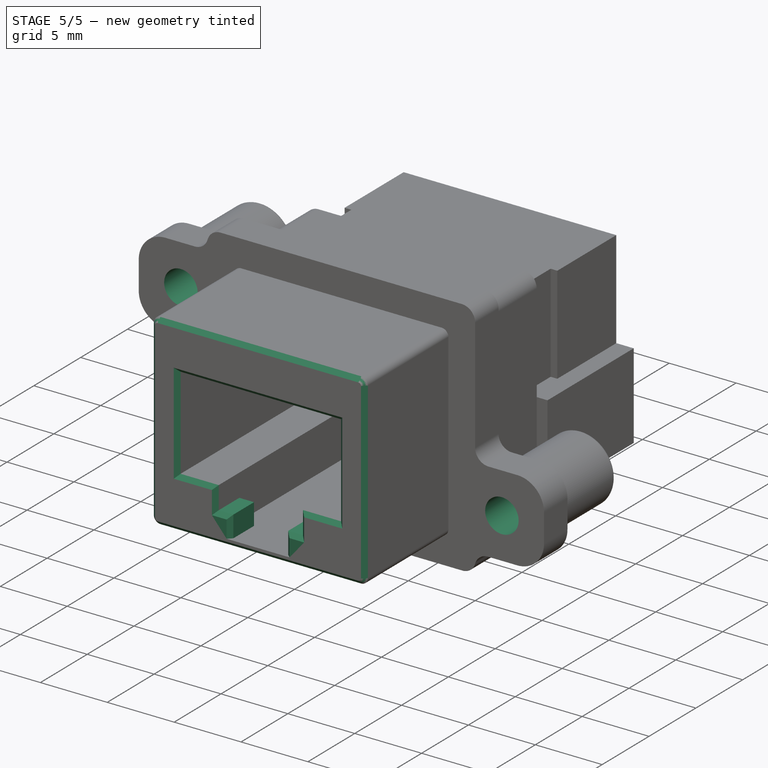
[diagram: stage 5 of 5 — iso view after this stage's code; geometry added in this stage tinted green]
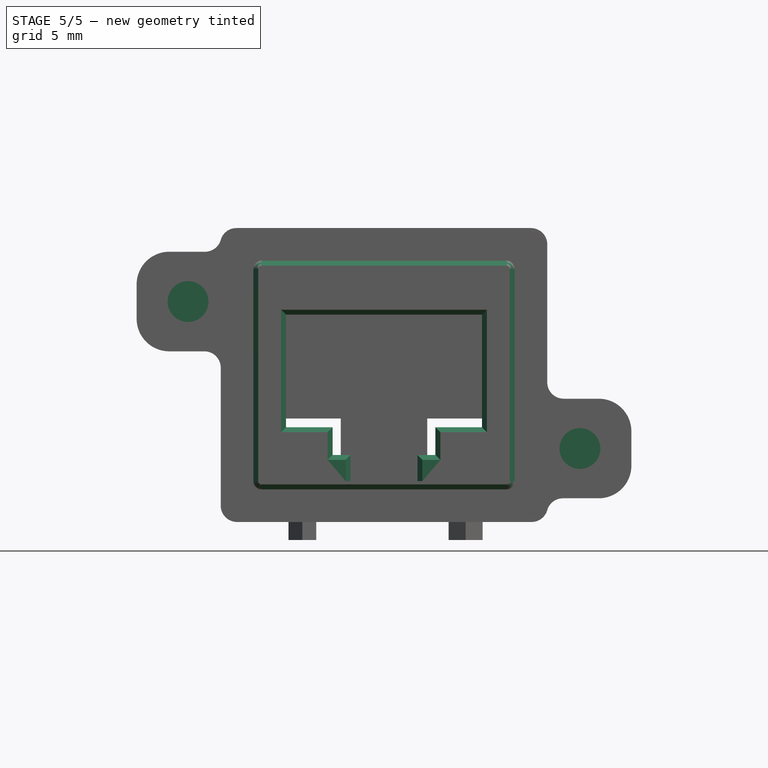
[diagram: stage 5 of 5 — front view after this stage's code; geometry added in this stage tinted green]
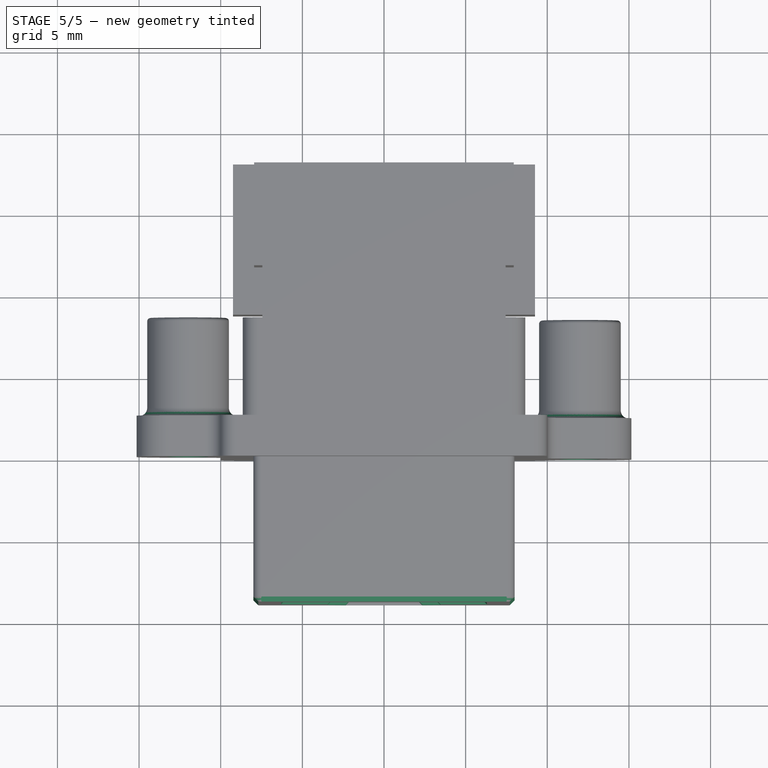
[diagram: stage 5 of 5 — top view after this stage's code; geometry added in this stage tinted green]
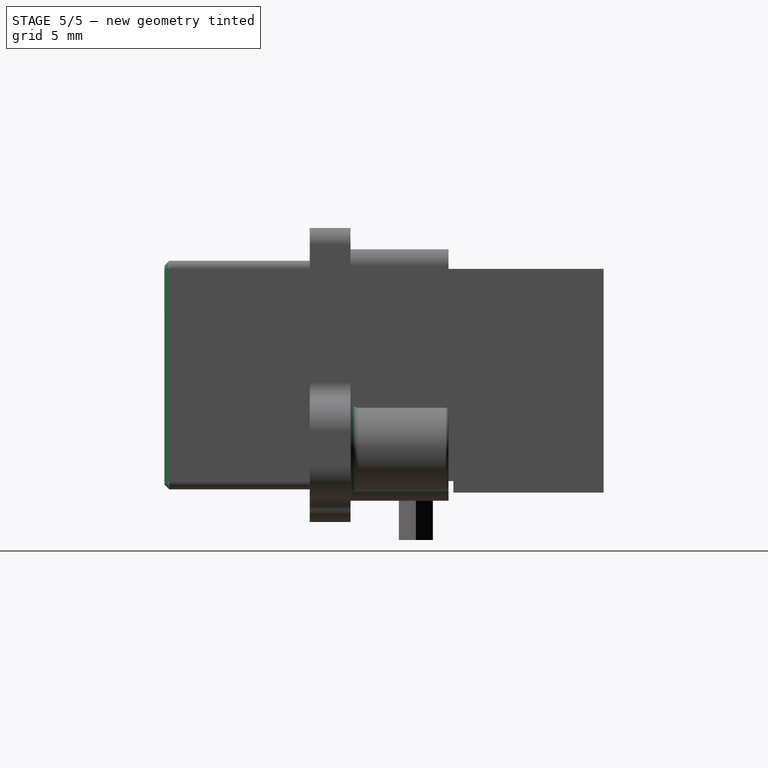
[diagram: stage 5 of 5 — right view after this stage's code; geometry added in this stage tinted green]
FEATURE [PartDesign::Pad] Pad004
  BaseFeature = -> Pocket
  Direction = (0,-1,2e-16)
  Length = 2.5
  Length2 = 10
  Placement = pos=(0,0,0) rot=(1,0,0;1.5708rad)
  Profile = -> Sketch014
  ReferenceAxis = -> Sketch014 [N_Axis]
  Reversed = true
  Suppressed = false
  Type = 0
FEATURE [Sketcher::SketchObject] Sketch015
  ArcFitTolerance = 0
  AttachmentSupport = -> [XZ_Plane]
  ExternalGeometry = -> [DatumLine]
  FullyConstrained = true
  MakeInternals = false
  MapMode = 5
  Placement = pos=(0,0,0) rot=(1,0,0;1.5708rad)
  expr: Constraints[10] = <<Master>>.mnt_z
  expr: Constraints[2] = <<Master>>.mnt_x
  sketch-geometry (6):
    g0: Circle CenterX=-12 CenterY=12.2 CenterZ=0 NormalX=0 NormalY=0 NormalZ=1 AngleXU=0 Radius=1.25
    g1: Circle CenterX=12 CenterY=3.2 CenterZ=0 NormalX=0 NormalY=0 NormalZ=1 AngleXU=0 Radius=1.25
    g2: LineSegment [constr] StartX=-12 StartY=12.2 StartZ=0 EndX=0 EndY=12.2 EndZ=0
    g3: LineSegment [constr] StartX=12 StartY=3.2 StartZ=0 EndX=0 EndY=3.2 EndZ=0
    g4: LineSegment [constr] StartX=0 StartY=7.7 StartZ=0 EndX=0 EndY=12.2 EndZ=0
    g5: LineSegment [constr] StartX=0 StartY=7.7 StartZ=0 EndX=0 EndY=3.2 EndZ=0
  constraints (16):
    c: Equal(g0,g1)
    c: Radius(g0) = 1.25
    c: DistanceX(g0,g1) = 24
    c: Coincident(g2,g0)
    c: PointOnObject(g2,g-2)
    c: Horizontal(g2)
    c: Coincident(g3,g1)
    c: Horizontal(g3)
    c: PointOnObject(g3,g-2)
    c: Equal(g2,g3)
    c: DistanceY(g3,g2) = 9
    c: Coincident(g4,g-3)
    c: Coincident(g5,g4)
    c: Equal(g4,g5)
    c: Coincident(g4,g2)
    c: Coincident(g3,g5)
FEATURE [PartDesign::Pocket] Pocket001
  BaseFeature = -> Pad004
  Direction = (0,1,-2e-16)
  Length = 5.5
  Length2 = 5
  Placement = pos=(0,0,0) rot=(1,0,0;1.5708rad)
  Profile = -> Sketch015
  ReferenceAxis = -> Sketch015 [N_Axis]
  Suppressed = false
  Type = 0
FEATURE [Sketcher::SketchObject] Sketch016
  ArcFitTolerance = 0
  AttachmentOffset = pos=(0,0,-8.5) rot=(0,0,1;0rad)
  AttachmentSupport = -> [XZ_Plane]
  ExternalGeometry = -> [DatumLine]
  FullyConstrained = true
  MakeInternals = false
  MapMode = 5
  Placement = pos=(0,8.5,-1.9e-15) rot=(1,0,0;1.5708rad)
  expr: .AttachmentOffset.Base.z = -<<Master>>.metal_back_tot
  expr: Constraints[7] = <<Master>>.back_open_z
  expr: Constraints[9] = <<Master>>.back_open_x
  sketch-geometry (6):
    g0: LineSegment StartX=-7.45 StartY=14.2 StartZ=0 EndX=7.45 EndY=14.2 EndZ=0
    g1: LineSegment StartX=7.45 StartY=14.2 StartZ=0 EndX=7.45 EndY=1.2 EndZ=0
    g2: LineSegment StartX=7.45 StartY=1.2 StartZ=0 EndX=-7.45 EndY=1.2 EndZ=0
    g3: LineSegment StartX=-7.45 StartY=1.2 StartZ=0 EndX=-7.45 EndY=14.2 EndZ=0
    g4: LineSegment [constr] StartX=0 StartY=7.7 StartZ=0 EndX=0 EndY=14.2 EndZ=0
    g5: LineSegment [constr] StartX=0 StartY=7.7 StartZ=0 EndX=0 EndY=1.2 EndZ=0
  constraints (17):
    c: Coincident(g0,g1)
    c: Coincident(g1,g2)
    c: Coincident(g2,g3)
    c: Coincident(g3,g0)
    c: Horizontal(g0)
    c: Vertical(g1)
    c: Vertical(g3)
    c: DistanceY(g3) = 13
    c: Symmetric(g2,g1,g-2)
    c: DistanceX(g2,g2) = 14.9
    c: Coincident(g4,g-3)
    c: PointOnObject(g4,g0)
    c: Coincident(g5,g4)
    c: PointOnObject(g5,g2)
    c: Equal(g5,g4)
    c: Vertical(g4)
    c: Vertical(g5)
FEATURE [PartDesign::Pocket] Pocket002
  BaseFeature = -> Pocket001
  Direction = (0,1,-2e-16)
  Length = 2.9
  Length2 = 5
  Placement = pos=(0,0,0) rot=(1,0,0;1.5708rad)
  Profile = -> Sketch016
  ReferenceAxis = -> Sketch016 [N_Axis]
  Refine = true
  Reversed = true
  Suppressed = false
  Type = 0
  expr: Length = <<Master>>.back_overlap
FEATURE [PartDesign::Chamfer] Chamfer
  Angle = 45
  Base = -> Pocket002 [Edge186,Edge151,Edge159,Edge143,Edge145,Edge158,Edge156,Edge171,Edge168,Edge149,Edge161,Edge164]
  BaseFeature = -> Pocket002
  ChamferType = 0
  FlipDirection = false
  Placement = pos=(0,0,0) rot=(1,0,0;1.5708rad)
  Size = 0.3
  Size2 = 1
  SupportTransform = false
  Suppressed = false
  UseAllEdges = false
FEATURE [PartDesign::Fillet] Fillet
  Base = -> Chamfer [Edge199,Edge198]
  BaseFeature = -> Chamfer
  Placement = pos=(0,0,0) rot=(1,0,0;1.5708rad)
  Radius = 0.5
  SupportTransform = false
  Suppressed = false
  UseAllEdges = false
FEATURE [PartDesign::Fillet] Fillet001
  Base = -> Fillet [Edge138,Edge106]
  BaseFeature = -> Fillet
  Placement = pos=(0,0,0) rot=(1,0,0;1.5708rad)
  Radius = 0.2
  SupportTransform = false
  Suppressed = false
  UseAllEdges = false
FEATURE [PartDesign::Body] Body
  AllowCompound = false
  Group = -> [DatumLine,Sketch,Pad,Sketch001,Pad001,Sketch002,Pad002,Sketch003,Pad003,Sketch013,Pocket,Sketch014,Pad004,Sketch015,Pocket001,Sketch016,Pocket002,Chamfer,Fillet,Fillet001]
  Origin = -> Origin
  Tip = -> Fillet001
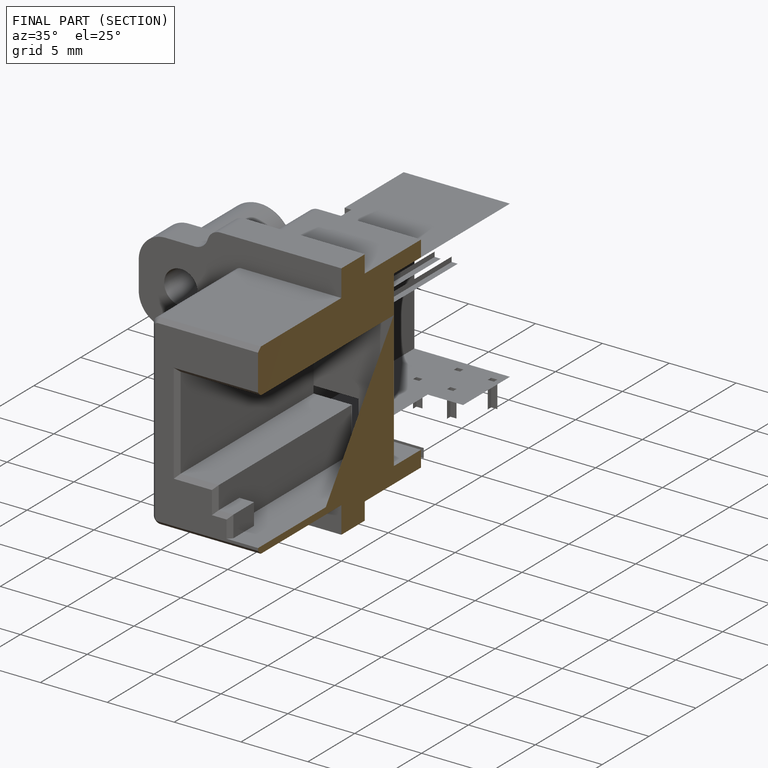
[diagram: finished part — half-section view (interior)]
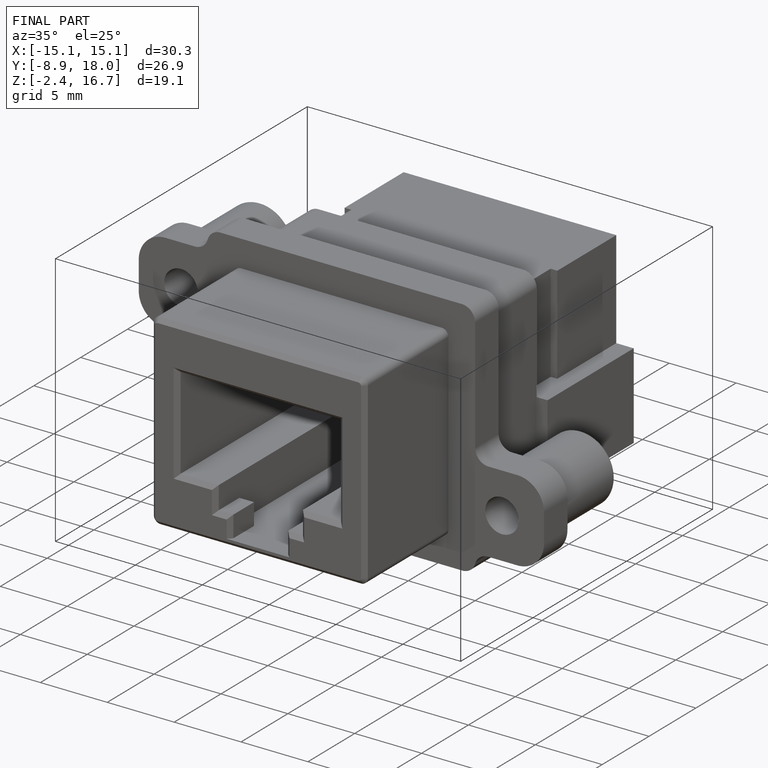
[diagram: finished part — iso view with bounding-box wireframe]
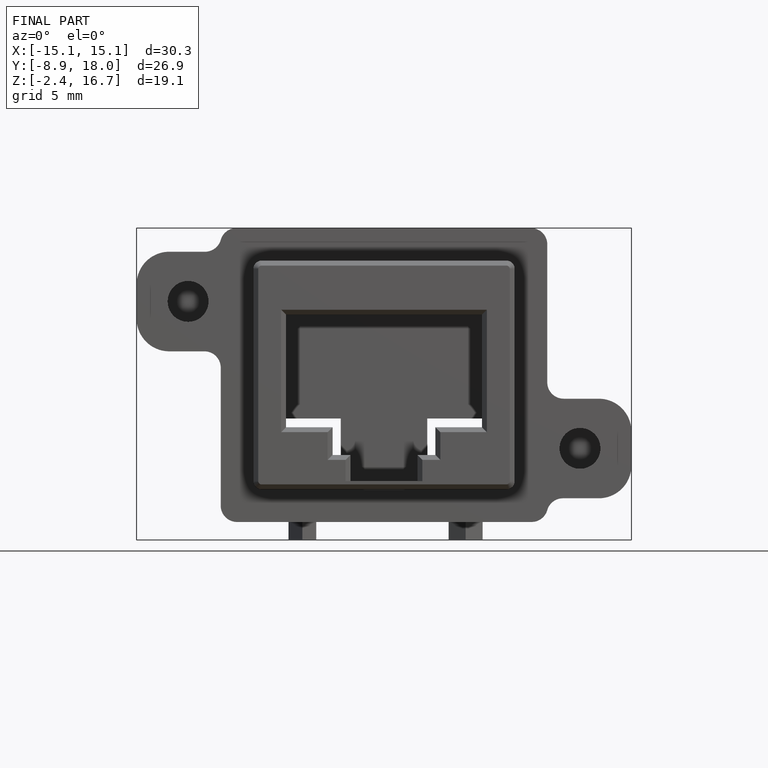
[diagram: finished part — front view with bounding-box wireframe]
